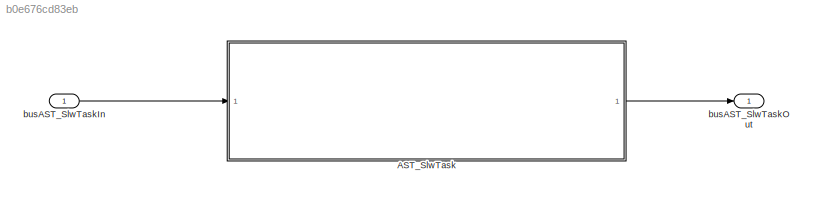
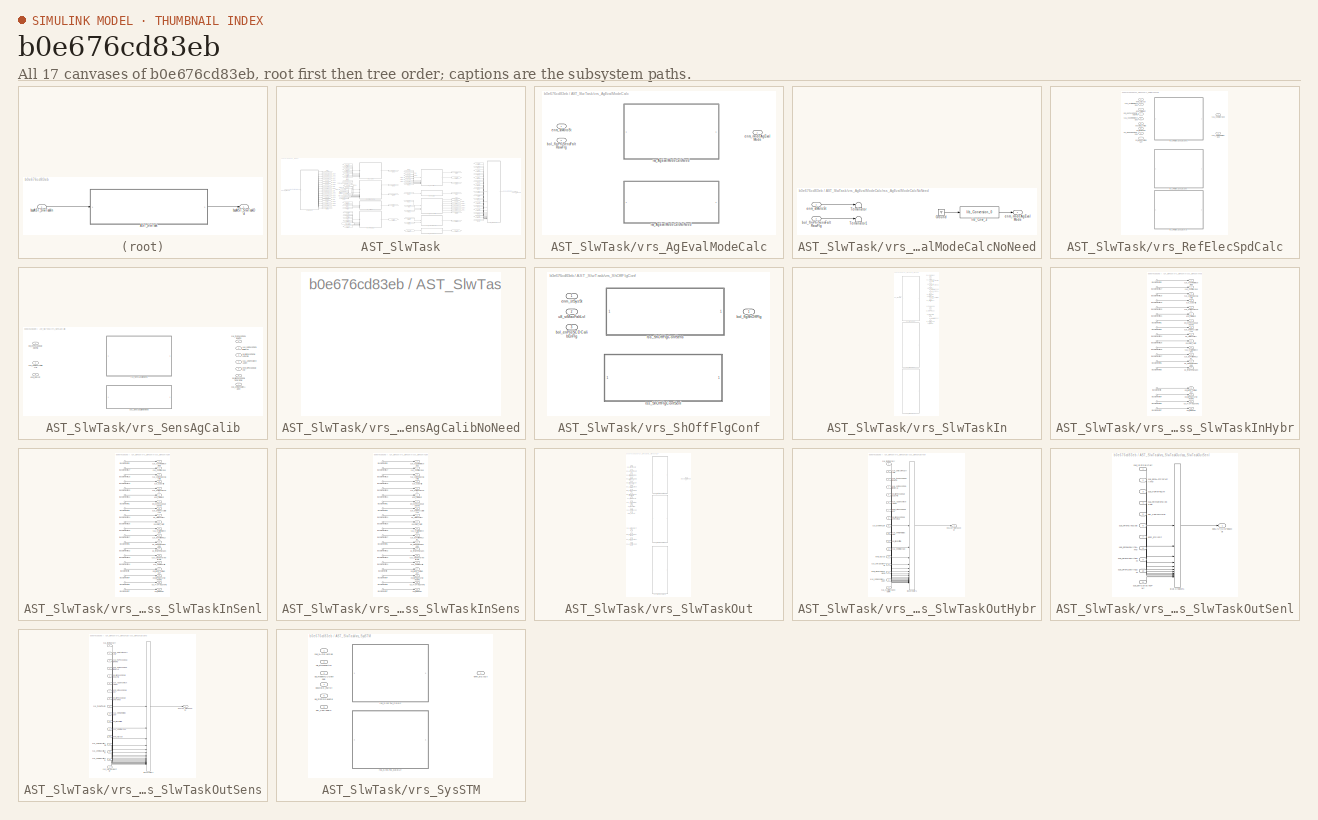
[diagram: thumbnail index - all 17 canvases of the model, root first then tree order]
MODEL slx_b0e676cd83eb
KIND model
CONFIG AbsTol = auto
CONFIG EnableMultiTasking = on
CONFIG FixedStep = 0.0005
CONFIG MaxStep = auto
CONFIG MinStep = auto
CONFIG RelTol = 1e-3
CONFIG SampleTimeConstraint = Unconstrained
CONFIG SolverName = FixedStepAuto
CONFIG StartTime = 0.0
CONFIG StopTime = 5
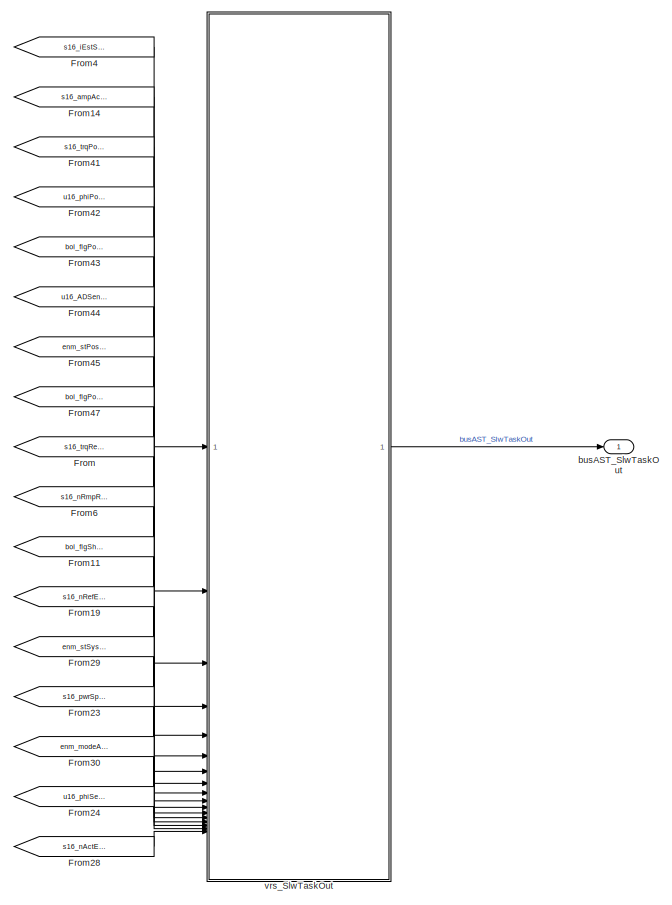
[diagram: AST_SlwTask - part 1/4, right side, full height]
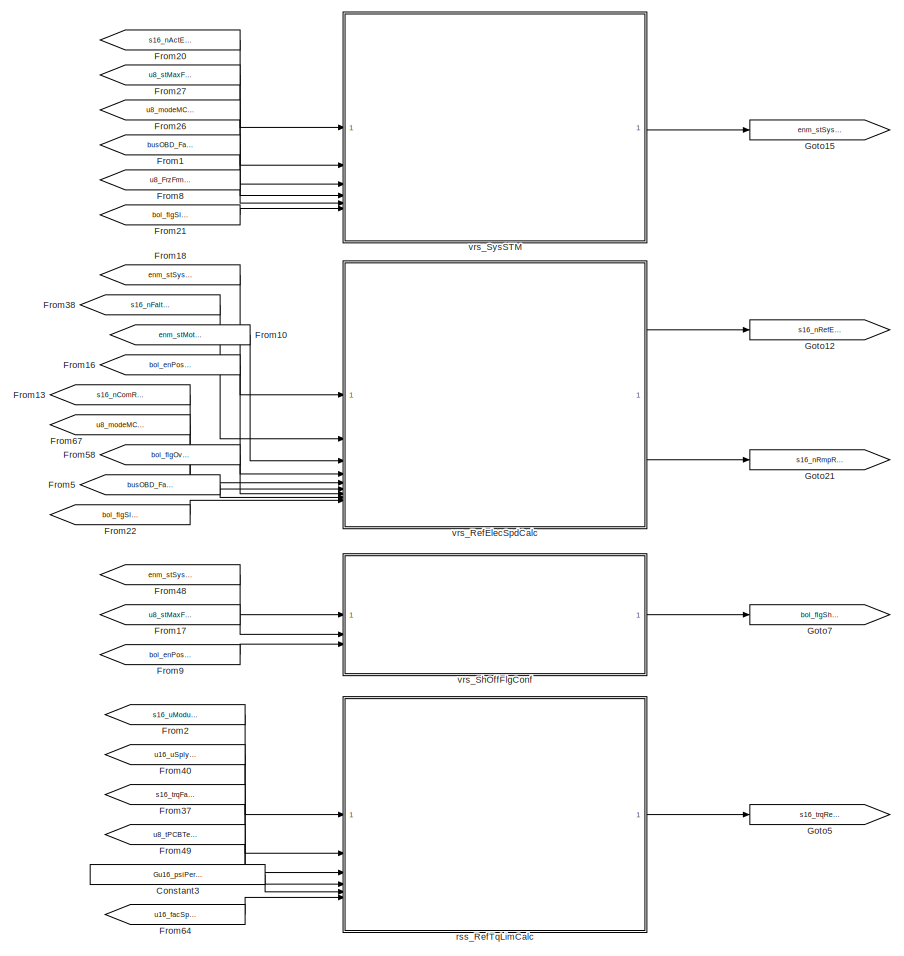
[diagram: AST_SlwTask - part 2/4, center side, full height]
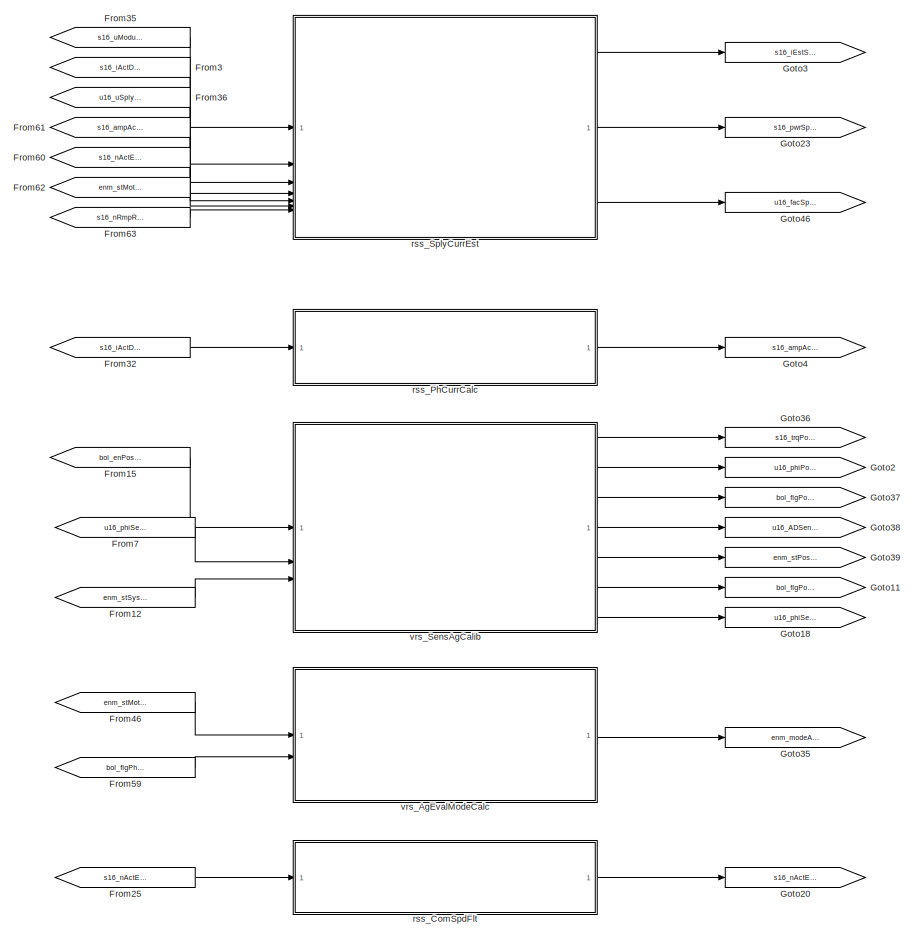
[diagram: AST_SlwTask - part 3/4, center side, full height]
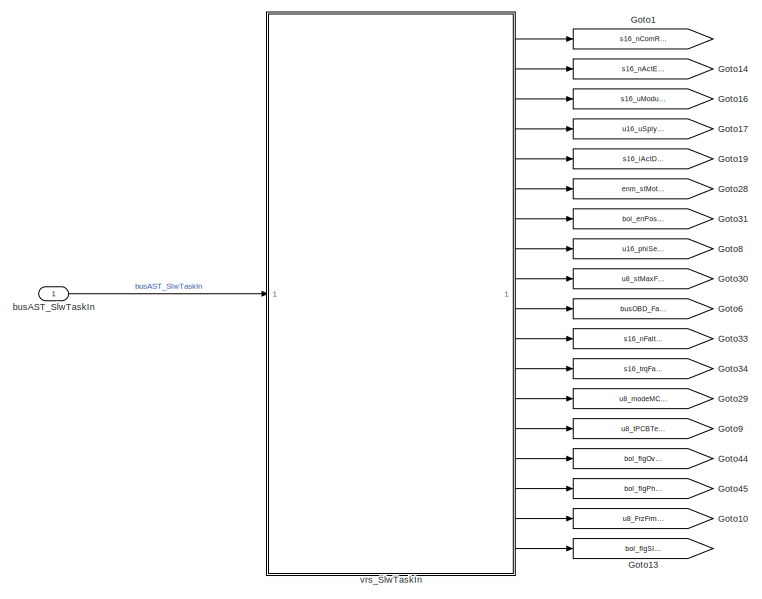
[diagram: AST_SlwTask - part 4/4, middle left region]
BLOCK [SubSystem] AST_SlwTask
  RTWFcnName = AST_SlwTask
  RTWFcnNameOpts = User specified
  RTWSystemCode = Nonreusable function
  TreatAsAtomicUnit = on
BLOCK [Constant] AST_SlwTask/Constant3
  Value = Gu16_psiPermMagFlx_C
BLOCK [From] AST_SlwTask/From
  GotoTag = s16_trqRefTqLim
BLOCK [From] AST_SlwTask/From1
  GotoTag = busOBD_FaltSt
BLOCK [From] AST_SlwTask/From10
  GotoTag = enm_stMotoSt
BLOCK [From] AST_SlwTask/From11
  GotoTag = bol_flgShOffFlg
BLOCK [From] AST_SlwTask/From12
  GotoTag = enm_stSysSt
BLOCK [From] AST_SlwTask/From13
  GotoTag = s16_nComRefMechSpd
BLOCK [From] AST_SlwTask/From14
  GotoTag = s16_ampActPhCurrAmp
BLOCK [From] AST_SlwTask/From15
  GotoTag = bol_enPosSCDCalibEnFlg
BLOCK [From] AST_SlwTask/From16
  GotoTag = bol_enPosSCDCalibEnFlg
BLOCK [From] AST_SlwTask/From17
  GotoTag = u8_stMaxFaltLvl
BLOCK [From] AST_SlwTask/From18
  GotoTag = enm_stSysSt
BLOCK [From] AST_SlwTask/From19
  GotoTag = s16_nRefElecSpd
BLOCK [From] AST_SlwTask/From2
  GotoTag = s16_uModulDaxQaxVltg
BLOCK [From] AST_SlwTask/From20
  GotoTag = s16_nActElecSpd
BLOCK [From] AST_SlwTask/From21
  GotoTag = bol_flgSlepEn
BLOCK [From] AST_SlwTask/From22
  GotoTag = bol_flgSlepEn
BLOCK [From] AST_SlwTask/From23
  GotoTag = s16_pwrSplyElecPwr
BLOCK [From] AST_SlwTask/From24
  GotoTag = u16_phiSensElecAgDvt
BLOCK [From] AST_SlwTask/From25
  GotoTag = s16_nActElecSpd
BLOCK [From] AST_SlwTask/From26
  GotoTag = u8_modeMCUOpMode
BLOCK [From] AST_SlwTask/From27
  GotoTag = u8_stMaxFaltLvl
BLOCK [From] AST_SlwTask/From28
  GotoTag = s16_nActElecSpdComFlt
BLOCK [From] AST_SlwTask/From29
  GotoTag = enm_stSysSt
BLOCK [From] AST_SlwTask/From3
  GotoTag = s16_iActDaxQaxCurr
BLOCK [From] AST_SlwTask/From30
  GotoTag = enm_modeAgEvalMode
BLOCK [From] AST_SlwTask/From32
  GotoTag = s16_iActDaxQaxCurr
BLOCK [From] AST_SlwTask/From35
  GotoTag = s16_uModulDaxQaxVltg
BLOCK [From] AST_SlwTask/From36
  GotoTag = u16_uSplyVltg
BLOCK [From] AST_SlwTask/From37
  GotoTag = s16_trqFaltRefTqLim
BLOCK [From] AST_SlwTask/From38
  GotoTag = s16_nFaltRefMechSpd
BLOCK [From] AST_SlwTask/From4
  GotoTag = s16_iEstSplyCurr
BLOCK [From] AST_SlwTask/From40
  GotoTag = u16_uSplyVltg
BLOCK [From] AST_SlwTask/From41
  GotoTag = s16_trqPosSCDCalibRefTq
BLOCK [From] AST_SlwTask/From42
  GotoTag = u16_phiPosSCDCalibElecAg
BLOCK [From] AST_SlwTask/From43
  GotoTag = bol_flgPosSCDCalibSucFlg
BLOCK [From] AST_SlwTask/From44
  GotoTag = u16_ADSensMechAgDvt
BLOCK [From] AST_SlwTask/From45
  GotoTag = enm_stPosSCDCalibSt
BLOCK [From] AST_SlwTask/From46
  GotoTag = enm_stMotoSt
BLOCK [From] AST_SlwTask/From47
  GotoTag = bol_flgPosSCDCalibPermFail
BLOCK [From] AST_SlwTask/From48
  GotoTag = enm_stSysSt
BLOCK [From] AST_SlwTask/From49
  GotoTag = u8_tPCBTempSubs
BLOCK [From] AST_SlwTask/From5
  GotoTag = busOBD_FaltSt
BLOCK [From] AST_SlwTask/From58
  GotoTag = bol_flgOvrTstCtlUDS2F
BLOCK [From] AST_SlwTask/From59
  GotoTag = bol_flgPhiSensFaltRawFlg
BLOCK [From] AST_SlwTask/From6
  GotoTag = s16_nRmpRefElecSpd
BLOCK [From] AST_SlwTask/From60
  GotoTag = s16_nActElecSpd
BLOCK [From] AST_SlwTask/From61
  GotoTag = s16_ampActPhCurrAmp
BLOCK [From] AST_SlwTask/From62
  GotoTag = enm_stMotoSt
BLOCK [From] AST_SlwTask/From63
  GotoTag = s16_nRmpRefElecSpd
BLOCK [From] AST_SlwTask/From64
  GotoTag = u16_facSplyCurrComp
BLOCK [From] AST_SlwTask/From67
  GotoTag = u8_modeMCUOpMode
BLOCK [From] AST_SlwTask/From7
  GotoTag = u16_phiSensActElecAg
BLOCK [From] AST_SlwTask/From8
  GotoTag = u8_FrzFrmSaveFlg
BLOCK [From] AST_SlwTask/From9
  GotoTag = bol_enPosSCDCalibEnFlg
BLOCK [Goto] AST_SlwTask/Goto1
  GotoTag = s16_nComRefMechSpd
BLOCK [Goto] AST_SlwTask/Goto10
  GotoTag = u8_FrzFrmSaveFlg
BLOCK [Goto] AST_SlwTask/Goto11
  GotoTag = bol_flgPosSCDCalibPermFail
BLOCK [Goto] AST_SlwTask/Goto12
  GotoTag = s16_nRefElecSpd
BLOCK [Goto] AST_SlwTask/Goto13
  GotoTag = bol_flgSlepEn
BLOCK [Goto] AST_SlwTask/Goto14
  GotoTag = s16_nActElecSpd
BLOCK [Goto] AST_SlwTask/Goto15
  GotoTag = enm_stSysSt
BLOCK [Goto] AST_SlwTask/Goto16
  GotoTag = s16_uModulDaxQaxVltg
BLOCK [Goto] AST_SlwTask/Goto17
  GotoTag = u16_uSplyVltg
BLOCK [Goto] AST_SlwTask/Goto18
  GotoTag = u16_phiSensElecAgDvt
BLOCK [Goto] AST_SlwTask/Goto19
  GotoTag = s16_iActDaxQaxCurr
BLOCK [Goto] AST_SlwTask/Goto2
  GotoTag = u16_phiPosSCDCalibElecAg
BLOCK [Goto] AST_SlwTask/Goto20
  GotoTag = s16_nActElecSpdComFlt
BLOCK [Goto] AST_SlwTask/Goto21
  GotoTag = s16_nRmpRefElecSpd
BLOCK [Goto] AST_SlwTask/Goto23
  GotoTag = s16_pwrSplyElecPwr
BLOCK [Goto] AST_SlwTask/Goto28
  GotoTag = enm_stMotoSt
BLOCK [Goto] AST_SlwTask/Goto29
  GotoTag = u8_modeMCUOpMode
BLOCK [Goto] AST_SlwTask/Goto3
  GotoTag = s16_iEstSplyCurr
BLOCK [Goto] AST_SlwTask/Goto30
  GotoTag = u8_stMaxFaltLvl
BLOCK [Goto] AST_SlwTask/Goto31
  GotoTag = bol_enPosSCDCalibEnFlg
BLOCK [Goto] AST_SlwTask/Goto33
  GotoTag = s16_nFaltRefMechSpd
BLOCK [Goto] AST_SlwTask/Goto34
  GotoTag = s16_trqFaltRefTqLim
BLOCK [Goto] AST_SlwTask/Goto35
  GotoTag = enm_modeAgEvalMode
BLOCK [Goto] AST_SlwTask/Goto36
  GotoTag = s16_trqPosSCDCalibRefTq
BLOCK [Goto] AST_SlwTask/Goto37
  GotoTag = bol_flgPosSCDCalibSucFlg
BLOCK [Goto] AST_SlwTask/Goto38
  GotoTag = u16_ADSensMechAgDvt
BLOCK [Goto] AST_SlwTask/Goto39
  GotoTag = enm_stPosSCDCalibSt
BLOCK [Goto] AST_SlwTask/Goto4
  GotoTag = s16_ampActPhCurrAmp
BLOCK [Goto] AST_SlwTask/Goto44
  GotoTag = bol_flgOvrTstCtlUDS2F
BLOCK [Goto] AST_SlwTask/Goto45
  GotoTag = bol_flgPhiSensFaltRawFlg
BLOCK [Goto] AST_SlwTask/Goto46
  GotoTag = u16_facSplyCurrComp
BLOCK [Goto] AST_SlwTask/Goto5
  GotoTag = s16_trqRefTqLim
BLOCK [Goto] AST_SlwTask/Goto6
  GotoTag = busOBD_FaltSt
BLOCK [Goto] AST_SlwTask/Goto7
  GotoTag = bol_flgShOffFlg
BLOCK [Goto] AST_SlwTask/Goto8
  GotoTag = u16_phiSensActElecAg
BLOCK [Goto] AST_SlwTask/Goto9
  GotoTag = u8_tPCBTempSubs
BLOCK [Inport] AST_SlwTask/busAST_SlwTaskIn
  SamplingMode = Sample based
  SignalType = real
BLOCK [Outport] AST_SlwTask/busAST_SlwTaskOut
  SamplingMode = Sample based
  SignalType = real
BLOCK [SubSystem] AST_SlwTask/rss_ComSpdFlt
  ReferencedSubsystem = rss_ComSpdFlt
BLOCK [SubSystem] AST_SlwTask/rss_PhCurrCalc
  ReferencedSubsystem = rss_PhCurrCalc
BLOCK [SubSystem] AST_SlwTask/rss_RefTqLimCalc
  ReferencedSubsystem = rss_RefTqLimCalc
BLOCK [SubSystem] AST_SlwTask/rss_SplyCurrEst
  ReferencedSubsystem = rss_SplyCurrEst
BLOCK [SubSystem] AST_SlwTask/vrs_AgEvalModeCalc
  LabelModeActiveChoice = cstHybrCtrlLbl
  Variant = on
  VariantControl = Choice
  VariantControlMode = label
BLOCK [Inport] AST_SlwTask/vrs_AgEvalModeCalc/bol_flgPhiSensFaltRawFlg
  Port = 2
BLOCK [Outport] AST_SlwTask/vrs_AgEvalModeCalc/enm_modeAgEvalMode
BLOCK [Inport] AST_SlwTask/vrs_AgEvalModeCalc/enm_stMotoSt
BLOCK [SubSystem] AST_SlwTask/vrs_AgEvalModeCalc/rss_AgEvalModeCalcNeed
  ReferencedSubsystem = rss_AgEvalModeCalcNeed
  VariantControl = cstHybrCtrlLbl
BLOCK [SubSystem] AST_SlwTask/vrs_AgEvalModeCalc/rss_AgEvalModeCalcNoNeed
  VariantControl = cstSensCtrlLbl
BLOCK [Ground] AST_SlwTask/vrs_AgEvalModeCalc/rss_AgEvalModeCalcNoNeed/Ground
BLOCK [Terminator] AST_SlwTask/vrs_AgEvalModeCalc/rss_AgEvalModeCalcNoNeed/Terminator
BLOCK [Terminator] AST_SlwTask/vrs_AgEvalModeCalc/rss_AgEvalModeCalcNoNeed/Terminator1
BLOCK [Inport] AST_SlwTask/vrs_AgEvalModeCalc/rss_AgEvalModeCalcNoNeed/bol_flgPhiSensFaltRawFlg
  OutDataTypeStr = boolean
  Port = 2
BLOCK [Outport] AST_SlwTask/vrs_AgEvalModeCalc/rss_AgEvalModeCalcNoNeed/enm_modeAgEvalMode
BLOCK [Inport] AST_SlwTask/vrs_AgEvalModeCalc/rss_AgEvalModeCalcNoNeed/enm_stMotoSt
  OutDataTypeStr = Enum: ENM_MOTO_STATUS
BLOCK [Reference] AST_SlwTask/vrs_AgEvalModeCalc/rss_AgEvalModeCalcNoNeed/lib_Cnvr_3  REF=lib_conversion/lib_Conversion_0  (lib defined in slx_7f5c0202220d)
  SourceBlock = lib_conversion/lib_Conversion_0
BLOCK [SubSystem] AST_SlwTask/vrs_RefElecSpdCalc
  LabelModeActiveChoice = cstHybrCtrlLbl
  Variant = on
  VariantControl = Choice
  VariantControlMode = label
BLOCK [Inport] AST_SlwTask/vrs_RefElecSpdCalc/bol_enPosSCDCalibEnFlg
  Port = 4
BLOCK [Inport] AST_SlwTask/vrs_RefElecSpdCalc/bol_flgOvrTstCtlUDS2F
  OutDataTypeStr = boolean
  Port = 7
BLOCK [Inport] AST_SlwTask/vrs_RefElecSpdCalc/bol_flgSlepEn
  Port = 9
BLOCK [Inport] AST_SlwTask/vrs_RefElecSpdCalc/busOBD_FaltSt
  OutDataTypeStr = Bus: BUS_OBD_FALT_STS
  Port = 8
BLOCK [Inport] AST_SlwTask/vrs_RefElecSpdCalc/enm_stMotoSt
  Port = 3
BLOCK [Inport] AST_SlwTask/vrs_RefElecSpdCalc/enm_stSysSt
BLOCK [SubSystem] AST_SlwTask/vrs_RefElecSpdCalc/rss_RefElecSpdCalcHybr
  ReferencedSubsystem = rss_RefElecSpdCalcHybr
  VariantControl = cstHybrCtrlLbl
BLOCK [SubSystem] AST_SlwTask/vrs_RefElecSpdCalc/rss_RefElecSpdCalcSenl
  ReferencedSubsystem = rss_RefElecSpdCalcSenl
  VariantControl = cstSenlCtrlLbl
BLOCK [SubSystem] AST_SlwTask/vrs_RefElecSpdCalc/rss_RefElecSpdCalcSens
  ReferencedSubsystem = rss_RefElecSpdCalcSens
  VariantControl = cstSensCtrlLbl
BLOCK [Inport] AST_SlwTask/vrs_RefElecSpdCalc/s16_nComRefMechSpd
  Port = 5
BLOCK [Inport] AST_SlwTask/vrs_RefElecSpdCalc/s16_nFaltRefMechSpd
  Port = 2
BLOCK [Outport] AST_SlwTask/vrs_RefElecSpdCalc/s16_nRefElecSpd
BLOCK [Outport] AST_SlwTask/vrs_RefElecSpdCalc/s16_nRmpRefElecSpd
  Port = 2
BLOCK [Inport] AST_SlwTask/vrs_RefElecSpdCalc/u8_modeMCUOpMode
  Port = 6
BLOCK [SubSystem] AST_SlwTask/vrs_SensAgCalib
  LabelModeActiveChoice = cstSensCtrlLbl
  Variant = on
  VariantControl = Choice
  VariantControlMode = label
BLOCK [Inport] AST_SlwTask/vrs_SensAgCalib/bol_enPosSCDCalibEnFlg
BLOCK [Outport] AST_SlwTask/vrs_SensAgCalib/bol_flgPosSCDCalibPermFail
  Port = 6
BLOCK [Outport] AST_SlwTask/vrs_SensAgCalib/bol_flgPosSCDCalibSucFlg
  Port = 3
BLOCK [Outport] AST_SlwTask/vrs_SensAgCalib/enm_stPosSCDCalibSt
  Port = 5
BLOCK [Inport] AST_SlwTask/vrs_SensAgCalib/enm_stSysSt
  Port = 3
BLOCK [SubSystem] AST_SlwTask/vrs_SensAgCalib/rss_SensAgCalibNeed
  ReferencedSubsystem = rss_SensAgCalibNeed
  VariantControl = cstSensCtrlLbl
BLOCK [Outport] AST_SlwTask/vrs_SensAgCalib/s16_trqPosSCDCalibRefTq
BLOCK [SubSystem] AST_SlwTask/vrs_SensAgCalib/sss_SensAgCalibNoNeed
  VariantControl = cstSenlCtrlLbl
BLOCK [Outport] AST_SlwTask/vrs_SensAgCalib/u16_ADSensMechAgDvt
  Port = 4
BLOCK [Outport] AST_SlwTask/vrs_SensAgCalib/u16_phiPosSCDCalibElecAg
  Port = 2
BLOCK [Inport] AST_SlwTask/vrs_SensAgCalib/u16_phiSensActElecAg
  Port = 2
BLOCK [Outport] AST_SlwTask/vrs_SensAgCalib/u16_phiSensElecAgDvt
  Port = 7
BLOCK [SubSystem] AST_SlwTask/vrs_ShOffFlgConf
  LabelModeActiveChoice = cstSensCtrlLbl
  Variant = on
  VariantControl = Choice
  VariantControlMode = label
BLOCK [Inport] AST_SlwTask/vrs_ShOffFlgConf/bol_enPosSCDCalibEnFlg
  Port = 3
BLOCK [Outport] AST_SlwTask/vrs_ShOffFlgConf/bol_flgShOffFlg
BLOCK [Inport] AST_SlwTask/vrs_ShOffFlgConf/enm_stSysSt
BLOCK [SubSystem] AST_SlwTask/vrs_ShOffFlgConf/rss_ShOffFlgConfSenl
  ReferencedSubsystem = rss_ShOffFlgConfSenl
  VariantControl = cstSenlCtrlLbl
BLOCK [SubSystem] AST_SlwTask/vrs_ShOffFlgConf/rss_ShOffFlgConfSens
  ReferencedSubsystem = rss_ShOffFlgConfSens
  VariantControl = cstSensCtrlLbl
BLOCK [Inport] AST_SlwTask/vrs_ShOffFlgConf/u8_stMaxFaltLvl
  Port = 2
BLOCK [SubSystem] AST_SlwTask/vrs_SlwTaskIn
  LabelModeActiveChoice = cstHybrCtrlLbl
  Variant = on
  VariantControl = cstSenlCtrlLbl
  VariantControlMode = label
BLOCK [Outport] AST_SlwTask/vrs_SlwTaskIn/bol_enPosSCDCalibEnFlg
  Port = 7
BLOCK [Outport] AST_SlwTask/vrs_SlwTaskIn/bol_flgOvrTstCtlUDS2F
  Port = 15
BLOCK [Outport] AST_SlwTask/vrs_SlwTaskIn/bol_flgPhiSensFaltRawFlg
  Port = 16
BLOCK [Outport] AST_SlwTask/vrs_SlwTaskIn/bol_flgSlepEn
  Port = 18
BLOCK [Inport] AST_SlwTask/vrs_SlwTaskIn/busAST_SlwTaskIn
BLOCK [Outport] AST_SlwTask/vrs_SlwTaskIn/busOBD_FaltSt
  Port = 10
BLOCK [Outport] AST_SlwTask/vrs_SlwTaskIn/enm_stMotoSt
  Port = 6
BLOCK [Outport] AST_SlwTask/vrs_SlwTaskIn/s16_iActDaxQaxCurr
  Port = 5
BLOCK [Outport] AST_SlwTask/vrs_SlwTaskIn/s16_nActElecSpd
  Port = 2
BLOCK [Outport] AST_SlwTask/vrs_SlwTaskIn/s16_nComRefMechSpd
BLOCK [Outport] AST_SlwTask/vrs_SlwTaskIn/s16_nFaltRefMechSpd
  Port = 11
BLOCK [Outport] AST_SlwTask/vrs_SlwTaskIn/s16_trqFaltRefTqLim
  Port = 12
BLOCK [Outport] AST_SlwTask/vrs_SlwTaskIn/s16_uModulDaxQaxVltg
  Port = 3
BLOCK [SubSystem] AST_SlwTask/vrs_SlwTaskIn/sss_SlwTaskInHybr
  VariantControl = cstHybrCtrlLbl
BLOCK [Inport] AST_SlwTask/vrs_SlwTaskIn/sss_SlwTaskInHybr/BusElementIn
BLOCK [Inport] AST_SlwTask/vrs_SlwTaskIn/sss_SlwTaskInHybr/BusElementIn1
BLOCK [Inport] AST_SlwTask/vrs_SlwTaskIn/sss_SlwTaskInHybr/BusElementIn17
BLOCK [Inport] AST_SlwTask/vrs_SlwTaskIn/sss_SlwTaskInHybr/BusElementIn18
BLOCK [Inport] AST_SlwTask/vrs_SlwTaskIn/sss_SlwTaskInHybr/BusElementIn19
BLOCK [Inport] AST_SlwTask/vrs_SlwTaskIn/sss_SlwTaskInHybr/BusElementIn2
BLOCK [Inport] AST_SlwTask/vrs_SlwTaskIn/sss_SlwTaskInHybr/BusElementIn20
BLOCK [Inport] AST_SlwTask/vrs_SlwTaskIn/sss_SlwTaskInHybr/BusElementIn21
BLOCK [Inport] AST_SlwTask/vrs_SlwTaskIn/sss_SlwTaskInHybr/BusElementIn24
BLOCK [Inport] AST_SlwTask/vrs_SlwTaskIn/sss_SlwTaskInHybr/BusElementIn25
BLOCK [Inport] AST_SlwTask/vrs_SlwTaskIn/sss_SlwTaskInHybr/BusElementIn26
BLOCK [Inport] AST_SlwTask/vrs_SlwTaskIn/sss_SlwTaskInHybr/BusElementIn27
BLOCK [Inport] AST_SlwTask/vrs_SlwTaskIn/sss_SlwTaskInHybr/BusElementIn3
BLOCK [Inport] AST_SlwTask/vrs_SlwTaskIn/sss_SlwTaskInHybr/BusElementIn4
BLOCK [Inport] AST_SlwTask/vrs_SlwTaskIn/sss_SlwTaskInHybr/BusElementIn5
BLOCK [Inport] AST_SlwTask/vrs_SlwTaskIn/sss_SlwTaskInHybr/BusElementIn6
BLOCK [Inport] AST_SlwTask/vrs_SlwTaskIn/sss_SlwTaskInHybr/BusElementIn7
BLOCK [Inport] AST_SlwTask/vrs_SlwTaskIn/sss_SlwTaskInHybr/BusElementIn8
BLOCK [Outport] AST_SlwTask/vrs_SlwTaskIn/sss_SlwTaskInHybr/bol_enPosSCDCalibEnFlg
  Port = 7
BLOCK [Outport] AST_SlwTask/vrs_SlwTaskIn/sss_SlwTaskInHybr/bol_flgOvrTstCtlUDS2F
  Port = 15
BLOCK [Outport] AST_SlwTask/vrs_SlwTaskIn/sss_SlwTaskInHybr/bol_flgPhiSensFaltRawFlg
  Port = 16
BLOCK [Outport] AST_SlwTask/vrs_SlwTaskIn/sss_SlwTaskInHybr/bol_flgSlepEn
  Port = 18
BLOCK [Outport] AST_SlwTask/vrs_SlwTaskIn/sss_SlwTaskInHybr/busOBD_FaltSt
  Port = 10
BLOCK [Outport] AST_SlwTask/vrs_SlwTaskIn/sss_SlwTaskInHybr/enm_stMotoSt
  Port = 6
BLOCK [Outport] AST_SlwTask/vrs_SlwTaskIn/sss_SlwTaskInHybr/s16_iActDaxQaxCurr
  Port = 5
BLOCK [Outport] AST_SlwTask/vrs_SlwTaskIn/sss_SlwTaskInHybr/s16_nActElecSpd
  Port = 2
BLOCK [Outport] AST_SlwTask/vrs_SlwTaskIn/sss_SlwTaskInHybr/s16_nComRefMechSpd
BLOCK [Outport] AST_SlwTask/vrs_SlwTaskIn/sss_SlwTaskInHybr/s16_nFaltRefMechSpd
  Port = 11
BLOCK [Outport] AST_SlwTask/vrs_SlwTaskIn/sss_SlwTaskInHybr/s16_trqFaltRefTqLim
  Port = 12
BLOCK [Outport] AST_SlwTask/vrs_SlwTaskIn/sss_SlwTaskInHybr/s16_uModulDaxQaxVltg
  Port = 3
BLOCK [Outport] AST_SlwTask/vrs_SlwTaskIn/sss_SlwTaskInHybr/u16_phiSensActElecAg
  Port = 8
BLOCK [Outport] AST_SlwTask/vrs_SlwTaskIn/sss_SlwTaskInHybr/u16_uSplyVltg
  Port = 4
BLOCK [Outport] AST_SlwTask/vrs_SlwTaskIn/sss_SlwTaskInHybr/u8_FrzFrmSaveFlg
  Port = 17
BLOCK [Outport] AST_SlwTask/vrs_SlwTaskIn/sss_SlwTaskInHybr/u8_modeMCUOpMode
  Port = 13
BLOCK [Outport] AST_SlwTask/vrs_SlwTaskIn/sss_SlwTaskInHybr/u8_stMaxFaltLvl
  Port = 9
BLOCK [Outport] AST_SlwTask/vrs_SlwTaskIn/sss_SlwTaskInHybr/u8_tPCBTempSubs
  Port = 14
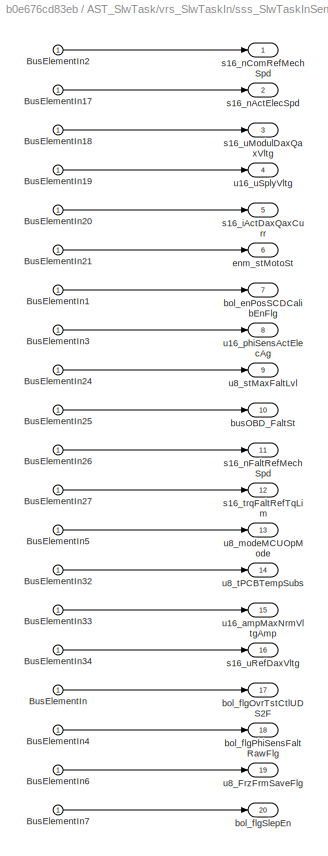
BLOCK [SubSystem] AST_SlwTask/vrs_SlwTaskIn/sss_SlwTaskInSenl
  VariantControl = cstSenlCtrlLbl
BLOCK [Inport] AST_SlwTask/vrs_SlwTaskIn/sss_SlwTaskInSenl/BusElementIn
BLOCK [Inport] AST_SlwTask/vrs_SlwTaskIn/sss_SlwTaskInSenl/BusElementIn1
BLOCK [Inport] AST_SlwTask/vrs_SlwTaskIn/sss_SlwTaskInSenl/BusElementIn17
BLOCK [Inport] AST_SlwTask/vrs_SlwTaskIn/sss_SlwTaskInSenl/BusElementIn18
BLOCK [Inport] AST_SlwTask/vrs_SlwTaskIn/sss_SlwTaskInSenl/BusElementIn19
BLOCK [Inport] AST_SlwTask/vrs_SlwTaskIn/sss_SlwTaskInSenl/BusElementIn2
BLOCK [Inport] AST_SlwTask/vrs_SlwTaskIn/sss_SlwTaskInSenl/BusElementIn20
BLOCK [Inport] AST_SlwTask/vrs_SlwTaskIn/sss_SlwTaskInSenl/BusElementIn21
BLOCK [Inport] AST_SlwTask/vrs_SlwTaskIn/sss_SlwTaskInSenl/BusElementIn24
BLOCK [Inport] AST_SlwTask/vrs_SlwTaskIn/sss_SlwTaskInSenl/BusElementIn25
BLOCK [Inport] AST_SlwTask/vrs_SlwTaskIn/sss_SlwTaskInSenl/BusElementIn26
BLOCK [Inport] AST_SlwTask/vrs_SlwTaskIn/sss_SlwTaskInSenl/BusElementIn27
BLOCK [Inport] AST_SlwTask/vrs_SlwTaskIn/sss_SlwTaskInSenl/BusElementIn3
BLOCK [Inport] AST_SlwTask/vrs_SlwTaskIn/sss_SlwTaskInSenl/BusElementIn32
BLOCK [Inport] AST_SlwTask/vrs_SlwTaskIn/sss_SlwTaskInSenl/BusElementIn33
BLOCK [Inport] AST_SlwTask/vrs_SlwTaskIn/sss_SlwTaskInSenl/BusElementIn34
BLOCK [Inport] AST_SlwTask/vrs_SlwTaskIn/sss_SlwTaskInSenl/BusElementIn4
BLOCK [Inport] AST_SlwTask/vrs_SlwTaskIn/sss_SlwTaskInSenl/BusElementIn5
BLOCK [Inport] AST_SlwTask/vrs_SlwTaskIn/sss_SlwTaskInSenl/BusElementIn6
BLOCK [Inport] AST_SlwTask/vrs_SlwTaskIn/sss_SlwTaskInSenl/BusElementIn7
BLOCK [Outport] AST_SlwTask/vrs_SlwTaskIn/sss_SlwTaskInSenl/bol_enPosSCDCalibEnFlg
  Port = 7
BLOCK [Outport] AST_SlwTask/vrs_SlwTaskIn/sss_SlwTaskInSenl/bol_flgOvrTstCtlUDS2F
  Port = 17
BLOCK [Outport] AST_SlwTask/vrs_SlwTaskIn/sss_SlwTaskInSenl/bol_flgPhiSensFaltRawFlg
  Port = 18
BLOCK [Outport] AST_SlwTask/vrs_SlwTaskIn/sss_SlwTaskInSenl/bol_flgSlepEn
  Port = 20
BLOCK [Outport] AST_SlwTask/vrs_SlwTaskIn/sss_SlwTaskInSenl/busOBD_FaltSt
  Port = 10
BLOCK [Outport] AST_SlwTask/vrs_SlwTaskIn/sss_SlwTaskInSenl/enm_stMotoSt
  Port = 6
BLOCK [Outport] AST_SlwTask/vrs_SlwTaskIn/sss_SlwTaskInSenl/s16_iActDaxQaxCurr
  Port = 5
BLOCK [Outport] AST_SlwTask/vrs_SlwTaskIn/sss_SlwTaskInSenl/s16_nActElecSpd
  Port = 2
BLOCK [Outport] AST_SlwTask/vrs_SlwTaskIn/sss_SlwTaskInSenl/s16_nComRefMechSpd
BLOCK [Outport] AST_SlwTask/vrs_SlwTaskIn/sss_SlwTaskInSenl/s16_nFaltRefMechSpd
  Port = 11
BLOCK [Outport] AST_SlwTask/vrs_SlwTaskIn/sss_SlwTaskInSenl/s16_trqFaltRefTqLim
  Port = 12
BLOCK [Outport] AST_SlwTask/vrs_SlwTaskIn/sss_SlwTaskInSenl/s16_uModulDaxQaxVltg
  Port = 3
BLOCK [Outport] AST_SlwTask/vrs_SlwTaskIn/sss_SlwTaskInSenl/s16_uRefDaxVltg
  Port = 16
BLOCK [Outport] AST_SlwTask/vrs_SlwTaskIn/sss_SlwTaskInSenl/u16_ampMaxNrmVltgAmp
  Port = 15
BLOCK [Outport] AST_SlwTask/vrs_SlwTaskIn/sss_SlwTaskInSenl/u16_phiSensActElecAg
  Port = 8
BLOCK [Outport] AST_SlwTask/vrs_SlwTaskIn/sss_SlwTaskInSenl/u16_uSplyVltg
  Port = 4
BLOCK [Outport] AST_SlwTask/vrs_SlwTaskIn/sss_SlwTaskInSenl/u8_FrzFrmSaveFlg
  Port = 19
BLOCK [Outport] AST_SlwTask/vrs_SlwTaskIn/sss_SlwTaskInSenl/u8_modeMCUOpMode
  Port = 13
BLOCK [Outport] AST_SlwTask/vrs_SlwTaskIn/sss_SlwTaskInSenl/u8_stMaxFaltLvl
  Port = 9
BLOCK [Outport] AST_SlwTask/vrs_SlwTaskIn/sss_SlwTaskInSenl/u8_tPCBTempSubs
  Port = 14
BLOCK [SubSystem] AST_SlwTask/vrs_SlwTaskIn/sss_SlwTaskInSens
  VariantControl = cstSensCtrlLbl
BLOCK [Inport] AST_SlwTask/vrs_SlwTaskIn/sss_SlwTaskInSens/BusElementIn
BLOCK [Inport] AST_SlwTask/vrs_SlwTaskIn/sss_SlwTaskInSens/BusElementIn1
BLOCK [Inport] AST_SlwTask/vrs_SlwTaskIn/sss_SlwTaskInSens/BusElementIn17
BLOCK [Inport] AST_SlwTask/vrs_SlwTaskIn/sss_SlwTaskInSens/BusElementIn18
BLOCK [Inport] AST_SlwTask/vrs_SlwTaskIn/sss_SlwTaskInSens/BusElementIn19
BLOCK [Inport] AST_SlwTask/vrs_SlwTaskIn/sss_SlwTaskInSens/BusElementIn2
BLOCK [Inport] AST_SlwTask/vrs_SlwTaskIn/sss_SlwTaskInSens/BusElementIn20
BLOCK [Inport] AST_SlwTask/vrs_SlwTaskIn/sss_SlwTaskInSens/BusElementIn21
BLOCK [Inport] AST_SlwTask/vrs_SlwTaskIn/sss_SlwTaskInSens/BusElementIn24
BLOCK [Inport] AST_SlwTask/vrs_SlwTaskIn/sss_SlwTaskInSens/BusElementIn25
BLOCK [Inport] AST_SlwTask/vrs_SlwTaskIn/sss_SlwTaskInSens/BusElementIn26
BLOCK [Inport] AST_SlwTask/vrs_SlwTaskIn/sss_SlwTaskInSens/BusElementIn27
BLOCK [Inport] AST_SlwTask/vrs_SlwTaskIn/sss_SlwTaskInSens/BusElementIn3
BLOCK [Inport] AST_SlwTask/vrs_SlwTaskIn/sss_SlwTaskInSens/BusElementIn32
BLOCK [Inport] AST_SlwTask/vrs_SlwTaskIn/sss_SlwTaskInSens/BusElementIn33
BLOCK [Inport] AST_SlwTask/vrs_SlwTaskIn/sss_SlwTaskInSens/BusElementIn34
BLOCK [Inport] AST_SlwTask/vrs_SlwTaskIn/sss_SlwTaskInSens/BusElementIn4
BLOCK [Inport] AST_SlwTask/vrs_SlwTaskIn/sss_SlwTaskInSens/BusElementIn5
BLOCK [Inport] AST_SlwTask/vrs_SlwTaskIn/sss_SlwTaskInSens/BusElementIn6
BLOCK [Inport] AST_SlwTask/vrs_SlwTaskIn/sss_SlwTaskInSens/BusElementIn7
BLOCK [Outport] AST_SlwTask/vrs_SlwTaskIn/sss_SlwTaskInSens/bol_enPosSCDCalibEnFlg
  Port = 7
BLOCK [Outport] AST_SlwTask/vrs_SlwTaskIn/sss_SlwTaskInSens/bol_flgOvrTstCtlUDS2F
  Port = 17
BLOCK [Outport] AST_SlwTask/vrs_SlwTaskIn/sss_SlwTaskInSens/bol_flgPhiSensFaltRawFlg
  Port = 18
BLOCK [Outport] AST_SlwTask/vrs_SlwTaskIn/sss_SlwTaskInSens/bol_flgSlepEn
  Port = 20
BLOCK [Outport] AST_SlwTask/vrs_SlwTaskIn/sss_SlwTaskInSens/busOBD_FaltSt
  Port = 10
BLOCK [Outport] AST_SlwTask/vrs_SlwTaskIn/sss_SlwTaskInSens/enm_stMotoSt
  Port = 6
BLOCK [Outport] AST_SlwTask/vrs_SlwTaskIn/sss_SlwTaskInSens/s16_iActDaxQaxCurr
  Port = 5
BLOCK [Outport] AST_SlwTask/vrs_SlwTaskIn/sss_SlwTaskInSens/s16_nActElecSpd
  Port = 2
BLOCK [Outport] AST_SlwTask/vrs_SlwTaskIn/sss_SlwTaskInSens/s16_nComRefMechSpd
BLOCK [Outport] AST_SlwTask/vrs_SlwTaskIn/sss_SlwTaskInSens/s16_nFaltRefMechSpd
  Port = 11
BLOCK [Outport] AST_SlwTask/vrs_SlwTaskIn/sss_SlwTaskInSens/s16_trqFaltRefTqLim
  Port = 12
BLOCK [Outport] AST_SlwTask/vrs_SlwTaskIn/sss_SlwTaskInSens/s16_uModulDaxQaxVltg
  Port = 3
BLOCK [Outport] AST_SlwTask/vrs_SlwTaskIn/sss_SlwTaskInSens/s16_uRefDaxVltg
  Port = 16
BLOCK [Outport] AST_SlwTask/vrs_SlwTaskIn/sss_SlwTaskInSens/u16_ampMaxNrmVltgAmp
  Port = 15
BLOCK [Outport] AST_SlwTask/vrs_SlwTaskIn/sss_SlwTaskInSens/u16_phiSensActElecAg
  Port = 8
BLOCK [Outport] AST_SlwTask/vrs_SlwTaskIn/sss_SlwTaskInSens/u16_uSplyVltg
  Port = 4
BLOCK [Outport] AST_SlwTask/vrs_SlwTaskIn/sss_SlwTaskInSens/u8_FrzFrmSaveFlg
  Port = 19
BLOCK [Outport] AST_SlwTask/vrs_SlwTaskIn/sss_SlwTaskInSens/u8_modeMCUOpMode
  Port = 13
BLOCK [Outport] AST_SlwTask/vrs_SlwTaskIn/sss_SlwTaskInSens/u8_stMaxFaltLvl
  Port = 9
BLOCK [Outport] AST_SlwTask/vrs_SlwTaskIn/sss_SlwTaskInSens/u8_tPCBTempSubs
  Port = 14
BLOCK [Outport] AST_SlwTask/vrs_SlwTaskIn/u16_phiSensActElecAg
  Port = 8
BLOCK [Outport] AST_SlwTask/vrs_SlwTaskIn/u16_uSplyVltg
  Port = 4
BLOCK [Outport] AST_SlwTask/vrs_SlwTaskIn/u8_FrzFrmSaveFlg
  Port = 17
BLOCK [Outport] AST_SlwTask/vrs_SlwTaskIn/u8_modeMCUOpMode
  Port = 13
BLOCK [Outport] AST_SlwTask/vrs_SlwTaskIn/u8_stMaxFaltLvl
  Port = 9
BLOCK [Outport] AST_SlwTask/vrs_SlwTaskIn/u8_tPCBTempSubs
  Port = 14
BLOCK [SubSystem] AST_SlwTask/vrs_SlwTaskOut
  LabelModeActiveChoice = cstHybrCtrlLbl
  Variant = on
  VariantControl = Choice
  VariantControlMode = label
BLOCK [Inport] AST_SlwTask/vrs_SlwTaskOut/bol_flgPosSCDCalibPermFail
  Port = 8
BLOCK [Inport] AST_SlwTask/vrs_SlwTaskOut/bol_flgPosSCDCalibSucFlg
  Port = 5
BLOCK [Inport] AST_SlwTask/vrs_SlwTaskOut/bol_flgShOffFlg
  Port = 11
BLOCK [Outport] AST_SlwTask/vrs_SlwTaskOut/busAST_SlwTaskOut
BLOCK [Inport] AST_SlwTask/vrs_SlwTaskOut/enm_modeAgEvalMode
  Port = 15
BLOCK [Inport] AST_SlwTask/vrs_SlwTaskOut/enm_stPosSCDCalibSt
  Port = 7
BLOCK [Inport] AST_SlwTask/vrs_SlwTaskOut/enm_stSysSt
  Port = 13
BLOCK [Inport] AST_SlwTask/vrs_SlwTaskOut/s16_ampActPhCurrAmp
  Port = 2
BLOCK [Inport] AST_SlwTask/vrs_SlwTaskOut/s16_iEstSplyCurr
BLOCK [Inport] AST_SlwTask/vrs_SlwTaskOut/s16_nActElecSpdComFlt
  Port = 17
BLOCK [Inport] AST_SlwTask/vrs_SlwTaskOut/s16_nRefElecSpd
  Port = 12
BLOCK [Inport] AST_SlwTask/vrs_SlwTaskOut/s16_nRmpRefElecSpd
  Port = 10
BLOCK [Inport] AST_SlwTask/vrs_SlwTaskOut/s16_pwrSplyElecPwr
  Port = 14
BLOCK [Inport] AST_SlwTask/vrs_SlwTaskOut/s16_trqPosSCDCalibRefTq
  Port = 3
BLOCK [Inport] AST_SlwTask/vrs_SlwTaskOut/s16_trqRefTqLim
  Port = 9
BLOCK [SubSystem] AST_SlwTask/vrs_SlwTaskOut/sss_SlwTaskOutHybr
  VariantControl = cstHybrCtrlLbl
BLOCK [BusCreator] AST_SlwTask/vrs_SlwTaskOut/sss_SlwTaskOutHybr/Bus Creator1
  DisplayOption = bar
  InheritFromInputs = off
  Inputs = 17
  NonVirtualBus = on
  OutDataTypeStr = Bus: BUS_AST_SLW_TASK_OUT
BLOCK [Inport] AST_SlwTask/vrs_SlwTaskOut/sss_SlwTaskOutHybr/bol_flgPosSCDCalibPermFail
  Port = 8
BLOCK [Inport] AST_SlwTask/vrs_SlwTaskOut/sss_SlwTaskOutHybr/bol_flgPosSCDCalibSucFlg
  Port = 5
BLOCK [Inport] AST_SlwTask/vrs_SlwTaskOut/sss_SlwTaskOutHybr/bol_flgShOffFlg
  Port = 11
BLOCK [Outport] AST_SlwTask/vrs_SlwTaskOut/sss_SlwTaskOutHybr/busAST_SlwTaskOut
BLOCK [Inport] AST_SlwTask/vrs_SlwTaskOut/sss_SlwTaskOutHybr/enm_modeAgEvalMode
  Port = 15
BLOCK [Inport] AST_SlwTask/vrs_SlwTaskOut/sss_SlwTaskOutHybr/enm_stPosSCDCalibSt
  Port = 7
BLOCK [Inport] AST_SlwTask/vrs_SlwTaskOut/sss_SlwTaskOutHybr/enm_stSysSt
  Port = 13
BLOCK [Inport] AST_SlwTask/vrs_SlwTaskOut/sss_SlwTaskOutHybr/s16_ampActPhCurrAmp
  Port = 2
BLOCK [Inport] AST_SlwTask/vrs_SlwTaskOut/sss_SlwTaskOutHybr/s16_iEstSplyCurr
BLOCK [Inport] AST_SlwTask/vrs_SlwTaskOut/sss_SlwTaskOutHybr/s16_nActElecSpdComFlt
  Port = 17
BLOCK [Inport] AST_SlwTask/vrs_SlwTaskOut/sss_SlwTaskOutHybr/s16_nRefElecSpd
  Port = 12
BLOCK [Inport] AST_SlwTask/vrs_SlwTaskOut/sss_SlwTaskOutHybr/s16_nRmpRefElecSpd
  Port = 10
BLOCK [Inport] AST_SlwTask/vrs_SlwTaskOut/sss_SlwTaskOutHybr/s16_pwrSplyElecPwr
  Port = 14
BLOCK [Inport] AST_SlwTask/vrs_SlwTaskOut/sss_SlwTaskOutHybr/s16_trqPosSCDCalibRefTq
  Port = 3
BLOCK [Inport] AST_SlwTask/vrs_SlwTaskOut/sss_SlwTaskOutHybr/s16_trqRefTqLim
  Port = 9
BLOCK [Inport] AST_SlwTask/vrs_SlwTaskOut/sss_SlwTaskOutHybr/u16_ADSensMechAgDvt
  Port = 6
BLOCK [Inport] AST_SlwTask/vrs_SlwTaskOut/sss_SlwTaskOutHybr/u16_phiPosSCDCalibElecAg
  Port = 4
BLOCK [Inport] AST_SlwTask/vrs_SlwTaskOut/sss_SlwTaskOutHybr/u16_phiSensElecAgDvt
  Port = 16
BLOCK [SubSystem] AST_SlwTask/vrs_SlwTaskOut/sss_SlwTaskOutSenl
  VariantControl = cstSenlCtrlLbl
BLOCK [BusCreator] AST_SlwTask/vrs_SlwTaskOut/sss_SlwTaskOutSenl/Bus Creator1
  DisplayOption = bar
  InheritFromInputs = off
  Inputs = 11
  NonVirtualBus = on
  OutDataTypeStr = Bus: BUS_AST_SLW_TASK_OUT
BLOCK [Inport] AST_SlwTask/vrs_SlwTaskOut/sss_SlwTaskOutSenl/bol_flgShOffFlg
  Port = 5
BLOCK [Outport] AST_SlwTask/vrs_SlwTaskOut/sss_SlwTaskOutSenl/busAST_SlwTaskOut
BLOCK [Inport] AST_SlwTask/vrs_SlwTaskOut/sss_SlwTaskOutSenl/enm_stSysSt
  Port = 7
BLOCK [Inport] AST_SlwTask/vrs_SlwTaskOut/sss_SlwTaskOutSenl/s16_ampActPhCurrAmp
  Port = 2
BLOCK [Inport] AST_SlwTask/vrs_SlwTaskOut/sss_SlwTaskOutSenl/s16_iEstSplyCurr
BLOCK [Inport] AST_SlwTask/vrs_SlwTaskOut/sss_SlwTaskOutSenl/s16_nRefElecSpd
  Port = 6
BLOCK [Inport] AST_SlwTask/vrs_SlwTaskOut/sss_SlwTaskOutSenl/s16_nRmpRefElecSpd
  Port = 4
BLOCK [Inport] AST_SlwTask/vrs_SlwTaskOut/sss_SlwTaskOutSenl/s16_pwrSplyElecPwr
  Port = 11
BLOCK [Inport] AST_SlwTask/vrs_SlwTaskOut/sss_SlwTaskOutSenl/s16_trqRefTqLim
  Port = 3
BLOCK [Inport] AST_SlwTask/vrs_SlwTaskOut/sss_SlwTaskOutSenl/s16_uRefDaxVltgLim
  Port = 9
BLOCK [Inport] AST_SlwTask/vrs_SlwTaskOut/sss_SlwTaskOutSenl/s16_uRefQaxVltgLim
  Port = 10
BLOCK [Inport] AST_SlwTask/vrs_SlwTaskOut/sss_SlwTaskOutSenl/u16_ampMaxVltgAmp
  Port = 8
BLOCK [SubSystem] AST_SlwTask/vrs_SlwTaskOut/sss_SlwTaskOutSens
  VariantControl = cstSensCtrlLbl
BLOCK [BusCreator] AST_SlwTask/vrs_SlwTaskOut/sss_SlwTaskOutSens/Bus Creator1
  DisplayOption = bar
  InheritFromInputs = off
  Inputs = 17
  NonVirtualBus = on
  OutDataTypeStr = Bus: BUS_AST_SLW_TASK_OUT
BLOCK [Inport] AST_SlwTask/vrs_SlwTaskOut/sss_SlwTaskOutSens/bol_flgPosSCDCalibPermFail
  Port = 8
BLOCK [Inport] AST_SlwTask/vrs_SlwTaskOut/sss_SlwTaskOutSens/bol_flgPosSCDCalibSucFlg
  Port = 5
BLOCK [Inport] AST_SlwTask/vrs_SlwTaskOut/sss_SlwTaskOutSens/bol_flgShOffFlg
  Port = 11
BLOCK [Outport] AST_SlwTask/vrs_SlwTaskOut/sss_SlwTaskOutSens/busAST_SlwTaskOut
BLOCK [Inport] AST_SlwTask/vrs_SlwTaskOut/sss_SlwTaskOutSens/enm_stPosSCDCalibSt
  Port = 7
BLOCK [Inport] AST_SlwTask/vrs_SlwTaskOut/sss_SlwTaskOutSens/enm_stSysSt
  Port = 13
BLOCK [Inport] AST_SlwTask/vrs_SlwTaskOut/sss_SlwTaskOutSens/s16_ampActPhCurrAmp
  Port = 2
BLOCK [Inport] AST_SlwTask/vrs_SlwTaskOut/sss_SlwTaskOutSens/s16_iEstSplyCurr
BLOCK [Inport] AST_SlwTask/vrs_SlwTaskOut/sss_SlwTaskOutSens/s16_nRefElecSpd
  Port = 12
BLOCK [Inport] AST_SlwTask/vrs_SlwTaskOut/sss_SlwTaskOutSens/s16_nRmpRefElecSpd
  Port = 10
BLOCK [Inport] AST_SlwTask/vrs_SlwTaskOut/sss_SlwTaskOutSens/s16_pwrSplyElecPwr
  Port = 17
BLOCK [Inport] AST_SlwTask/vrs_SlwTaskOut/sss_SlwTaskOutSens/s16_trqPosSCDCalibRefTq
  Port = 3
BLOCK [Inport] AST_SlwTask/vrs_SlwTaskOut/sss_SlwTaskOutSens/s16_trqRefTqLim
  Port = 9
BLOCK [Inport] AST_SlwTask/vrs_SlwTaskOut/sss_SlwTaskOutSens/s16_uRefDaxVltgLim
  Port = 15
BLOCK [Inport] AST_SlwTask/vrs_SlwTaskOut/sss_SlwTaskOutSens/s16_uRefQaxVltgLim
  Port = 16
BLOCK [Inport] AST_SlwTask/vrs_SlwTaskOut/sss_SlwTaskOutSens/u16_ADSensMechAgDvt
  Port = 6
BLOCK [Inport] AST_SlwTask/vrs_SlwTaskOut/sss_SlwTaskOutSens/u16_ampMaxVltgAmp
  Port = 14
BLOCK [Inport] AST_SlwTask/vrs_SlwTaskOut/sss_SlwTaskOutSens/u16_phiPosSCDCalibElecAg
  Port = 4
BLOCK [Inport] AST_SlwTask/vrs_SlwTaskOut/u16_ADSensMechAgDvt
  Port = 6
BLOCK [Inport] AST_SlwTask/vrs_SlwTaskOut/u16_phiPosSCDCalibElecAg
  Port = 4
BLOCK [Inport] AST_SlwTask/vrs_SlwTaskOut/u16_phiSensElecAgDvt
  Port = 16
BLOCK [SubSystem] AST_SlwTask/vrs_SysSTM
  LabelModeActiveChoice = GEELY_PROJECT
  Variant = on
  VariantControl = Choice
  VariantControlMode = label
BLOCK [Inport] AST_SlwTask/vrs_SysSTM/bol_flgSlepEn
  Port = 6
BLOCK [Inport] AST_SlwTask/vrs_SysSTM/busOBD_FaltSt
  Port = 4
BLOCK [Outport] AST_SlwTask/vrs_SysSTM/enm_stSysSt
BLOCK [SubSystem] AST_SlwTask/vrs_SysSTM/rss_SysSTM_CRRC
  ReferencedSubsystem = rss_SysSTM_CRRC
  VariantControl = CRRC_PROJECT
BLOCK [SubSystem] AST_SlwTask/vrs_SysSTM/rss_SysSTM_GEELY
  ReferencedSubsystem = rss_SysSTM_GEELY
  VariantControl = GEELY_PROJECT
BLOCK [Inport] AST_SlwTask/vrs_SysSTM/s16_nActElecSpd
BLOCK [Inport] AST_SlwTask/vrs_SysSTM/u8_FrzFrmSaveFlg
  Port = 5
BLOCK [Inport] AST_SlwTask/vrs_SysSTM/u8_modeMCUOpMode
  Port = 3
BLOCK [Inport] AST_SlwTask/vrs_SysSTM/u8_stMaxFaltLvl
  Port = 2
BLOCK [Inport] busAST_SlwTaskIn
  BusOutputAsStruct = on
  OutDataTypeStr = Bus: BUS_AST_SLW_TASK_IN
  SampleTime = round(double(Cdbl_tiSlwTaskSmpTi),4)
  SamplingMode = Sample based
  SignalType = real
BLOCK [Outport] busAST_SlwTaskOut
  OutDataTypeStr = Bus: BUS_AST_SLW_TASK_OUT
  SampleTime = round(double(Cdbl_tiSlwTaskSmpTi),4)
  SamplingMode = Sample based
  SignalType = real
LINE AST_SlwTask/Constant3:1 -> AST_SlwTask/rss_RefTqLimCalc:5
LINE AST_SlwTask/From10:1 -> AST_SlwTask/vrs_RefElecSpdCalc:3
LINE AST_SlwTask/From11:1 -> AST_SlwTask/vrs_SlwTaskOut:11
LINE AST_SlwTask/From12:1 -> AST_SlwTask/vrs_SensAgCalib:3
LINE AST_SlwTask/From13:1 -> AST_SlwTask/vrs_RefElecSpdCalc:5
LINE AST_SlwTask/From14:1 -> AST_SlwTask/vrs_SlwTaskOut:2
LINE AST_SlwTask/From15:1 -> AST_SlwTask/vrs_SensAgCalib:1
LINE AST_SlwTask/From16:1 -> AST_SlwTask/vrs_RefElecSpdCalc:4
LINE AST_SlwTask/From17:1 -> AST_SlwTask/vrs_ShOffFlgConf:2
LINE AST_SlwTask/From18:1 -> AST_SlwTask/vrs_RefElecSpdCalc:1
LINE AST_SlwTask/From19:1 -> AST_SlwTask/vrs_SlwTaskOut:12
LINE AST_SlwTask/From1:1 -> AST_SlwTask/vrs_SysSTM:4
LINE AST_SlwTask/From20:1 -> AST_SlwTask/vrs_SysSTM:1
LINE AST_SlwTask/From21:1 -> AST_SlwTask/vrs_SysSTM:6
LINE AST_SlwTask/From22:1 -> AST_SlwTask/vrs_RefElecSpdCalc:9
LINE AST_SlwTask/From23:1 -> AST_SlwTask/vrs_SlwTaskOut:14
LINE AST_SlwTask/From24:1 -> AST_SlwTask/vrs_SlwTaskOut:16
LINE AST_SlwTask/From25:1 -> AST_SlwTask/rss_ComSpdFlt:1
LINE AST_SlwTask/From26:1 -> AST_SlwTask/vrs_SysSTM:3
LINE AST_SlwTask/From27:1 -> AST_SlwTask/vrs_SysSTM:2
LINE AST_SlwTask/From28:1 -> AST_SlwTask/vrs_SlwTaskOut:17
LINE AST_SlwTask/From29:1 -> AST_SlwTask/vrs_SlwTaskOut:13
LINE AST_SlwTask/From2:1 -> AST_SlwTask/rss_RefTqLimCalc:1
LINE AST_SlwTask/From30:1 -> AST_SlwTask/vrs_SlwTaskOut:15
LINE AST_SlwTask/From32:1 -> AST_SlwTask/rss_PhCurrCalc:1
LINE AST_SlwTask/From35:1 -> AST_SlwTask/rss_SplyCurrEst:1
LINE AST_SlwTask/From36:1 -> AST_SlwTask/rss_SplyCurrEst:3
LINE AST_SlwTask/From37:1 -> AST_SlwTask/rss_RefTqLimCalc:3
LINE AST_SlwTask/From38:1 -> AST_SlwTask/vrs_RefElecSpdCalc:2
LINE AST_SlwTask/From3:1 -> AST_SlwTask/rss_SplyCurrEst:2
LINE AST_SlwTask/From40:1 -> AST_SlwTask/rss_RefTqLimCalc:2
LINE AST_SlwTask/From41:1 -> AST_SlwTask/vrs_SlwTaskOut:3
LINE AST_SlwTask/From42:1 -> AST_SlwTask/vrs_SlwTaskOut:4
LINE AST_SlwTask/From43:1 -> AST_SlwTask/vrs_SlwTaskOut:5
LINE AST_SlwTask/From44:1 -> AST_SlwTask/vrs_SlwTaskOut:6
LINE AST_SlwTask/From45:1 -> AST_SlwTask/vrs_SlwTaskOut:7
LINE AST_SlwTask/From46:1 -> AST_SlwTask/vrs_AgEvalModeCalc:1
LINE AST_SlwTask/From47:1 -> AST_SlwTask/vrs_SlwTaskOut:8
LINE AST_SlwTask/From48:1 -> AST_SlwTask/vrs_ShOffFlgConf:1
LINE AST_SlwTask/From49:1 -> AST_SlwTask/rss_RefTqLimCalc:4
LINE AST_SlwTask/From4:1 -> AST_SlwTask/vrs_SlwTaskOut:1
LINE AST_SlwTask/From58:1 -> AST_SlwTask/vrs_RefElecSpdCalc:7
LINE AST_SlwTask/From59:1 -> AST_SlwTask/vrs_AgEvalModeCalc:2
LINE AST_SlwTask/From5:1 -> AST_SlwTask/vrs_RefElecSpdCalc:8
LINE AST_SlwTask/From60:1 -> AST_SlwTask/rss_SplyCurrEst:5
LINE AST_SlwTask/From61:1 -> AST_SlwTask/rss_SplyCurrEst:4
LINE AST_SlwTask/From62:1 -> AST_SlwTask/rss_SplyCurrEst:6
LINE AST_SlwTask/From63:1 -> AST_SlwTask/rss_SplyCurrEst:7
LINE AST_SlwTask/From64:1 -> AST_SlwTask/rss_RefTqLimCalc:6
LINE AST_SlwTask/From67:1 -> AST_SlwTask/vrs_RefElecSpdCalc:6
LINE AST_SlwTask/From6:1 -> AST_SlwTask/vrs_SlwTaskOut:10
LINE AST_SlwTask/From7:1 -> AST_SlwTask/vrs_SensAgCalib:2
LINE AST_SlwTask/From8:1 -> AST_SlwTask/vrs_SysSTM:5
LINE AST_SlwTask/From9:1 -> AST_SlwTask/vrs_ShOffFlgConf:3
LINE AST_SlwTask/From:1 -> AST_SlwTask/vrs_SlwTaskOut:9
LINE AST_SlwTask/busAST_SlwTaskIn:1 -> AST_SlwTask/vrs_SlwTaskIn:1
LINE AST_SlwTask/rss_ComSpdFlt:1 -> AST_SlwTask/Goto20:1
LINE AST_SlwTask/rss_PhCurrCalc:1 -> AST_SlwTask/Goto4:1
LINE AST_SlwTask/rss_RefTqLimCalc:1 -> AST_SlwTask/Goto5:1
LINE AST_SlwTask/rss_SplyCurrEst:1 -> AST_SlwTask/Goto3:1
LINE AST_SlwTask/rss_SplyCurrEst:2 -> AST_SlwTask/Goto23:1
LINE AST_SlwTask/rss_SplyCurrEst:3 -> AST_SlwTask/Goto46:1
LINE AST_SlwTask/vrs_AgEvalModeCalc/rss_AgEvalModeCalcNoNeed/Ground:1 -> AST_SlwTask/vrs_AgEvalModeCalc/rss_AgEvalModeCalcNoNeed/lib_Cnvr_3:1
LINE AST_SlwTask/vrs_AgEvalModeCalc/rss_AgEvalModeCalcNoNeed/bol_flgPhiSensFaltRawFlg:1 -> AST_SlwTask/vrs_AgEvalModeCalc/rss_AgEvalModeCalcNoNeed/Terminator1:1
LINE AST_SlwTask/vrs_AgEvalModeCalc/rss_AgEvalModeCalcNoNeed/enm_stMotoSt:1 -> AST_SlwTask/vrs_AgEvalModeCalc/rss_AgEvalModeCalcNoNeed/Terminator:1
LINE AST_SlwTask/vrs_AgEvalModeCalc/rss_AgEvalModeCalcNoNeed/lib_Cnvr_3:1 -> AST_SlwTask/vrs_AgEvalModeCalc/rss_AgEvalModeCalcNoNeed/enm_modeAgEvalMode:1
LINE AST_SlwTask/vrs_AgEvalModeCalc:1 -> AST_SlwTask/Goto35:1
LINE AST_SlwTask/vrs_RefElecSpdCalc:1 -> AST_SlwTask/Goto12:1
LINE AST_SlwTask/vrs_RefElecSpdCalc:2 -> AST_SlwTask/Goto21:1
LINE AST_SlwTask/vrs_SensAgCalib:1 -> AST_SlwTask/Goto36:1
LINE AST_SlwTask/vrs_SensAgCalib:2 -> AST_SlwTask/Goto2:1
LINE AST_SlwTask/vrs_SensAgCalib:3 -> AST_SlwTask/Goto37:1
LINE AST_SlwTask/vrs_SensAgCalib:4 -> AST_SlwTask/Goto38:1
LINE AST_SlwTask/vrs_SensAgCalib:5 -> AST_SlwTask/Goto39:1
LINE AST_SlwTask/vrs_SensAgCalib:6 -> AST_SlwTask/Goto11:1
LINE AST_SlwTask/vrs_SensAgCalib:7 -> AST_SlwTask/Goto18:1
LINE AST_SlwTask/vrs_ShOffFlgConf:1 -> AST_SlwTask/Goto7:1
LINE AST_SlwTask/vrs_SlwTaskIn/sss_SlwTaskInHybr/BusElementIn17:1 -> AST_SlwTask/vrs_SlwTaskIn/sss_SlwTaskInHybr/s16_nActElecSpd:1
LINE AST_SlwTask/vrs_SlwTaskIn/sss_SlwTaskInHybr/BusElementIn18:1 -> AST_SlwTask/vrs_SlwTaskIn/sss_SlwTaskInHybr/s16_uModulDaxQaxVltg:1
LINE AST_SlwTask/vrs_SlwTaskIn/sss_SlwTaskInHybr/BusElementIn19:1 -> AST_SlwTask/vrs_SlwTaskIn/sss_SlwTaskInHybr/u16_uSplyVltg:1
LINE AST_SlwTask/vrs_SlwTaskIn/sss_SlwTaskInHybr/BusElementIn1:1 -> AST_SlwTask/vrs_SlwTaskIn/sss_SlwTaskInHybr/bol_enPosSCDCalibEnFlg:1
LINE AST_SlwTask/vrs_SlwTaskIn/sss_SlwTaskInHybr/BusElementIn20:1 -> AST_SlwTask/vrs_SlwTaskIn/sss_SlwTaskInHybr/s16_iActDaxQaxCurr:1
LINE AST_SlwTask/vrs_SlwTaskIn/sss_SlwTaskInHybr/BusElementIn21:1 -> AST_SlwTask/vrs_SlwTaskIn/sss_SlwTaskInHybr/enm_stMotoSt:1
LINE AST_SlwTask/vrs_SlwTaskIn/sss_SlwTaskInHybr/BusElementIn24:1 -> AST_SlwTask/vrs_SlwTaskIn/sss_SlwTaskInHybr/u8_stMaxFaltLvl:1
LINE AST_SlwTask/vrs_SlwTaskIn/sss_SlwTaskInHybr/BusElementIn25:1 -> AST_SlwTask/vrs_SlwTaskIn/sss_SlwTaskInHybr/busOBD_FaltSt:1
LINE AST_SlwTask/vrs_SlwTaskIn/sss_SlwTaskInHybr/BusElementIn26:1 -> AST_SlwTask/vrs_SlwTaskIn/sss_SlwTaskInHybr/s16_nFaltRefMechSpd:1
LINE AST_SlwTask/vrs_SlwTaskIn/sss_SlwTaskInHybr/BusElementIn27:1 -> AST_SlwTask/vrs_SlwTaskIn/sss_SlwTaskInHybr/s16_trqFaltRefTqLim:1
LINE AST_SlwTask/vrs_SlwTaskIn/sss_SlwTaskInHybr/BusElementIn2:1 -> AST_SlwTask/vrs_SlwTaskIn/sss_SlwTaskInHybr/s16_nComRefMechSpd:1
LINE AST_SlwTask/vrs_SlwTaskIn/sss_SlwTaskInHybr/BusElementIn3:1 -> AST_SlwTask/vrs_SlwTaskIn/sss_SlwTaskInHybr/u16_phiSensActElecAg:1
LINE AST_SlwTask/vrs_SlwTaskIn/sss_SlwTaskInHybr/BusElementIn4:1 -> AST_SlwTask/vrs_SlwTaskIn/sss_SlwTaskInHybr/bol_flgPhiSensFaltRawFlg:1
LINE AST_SlwTask/vrs_SlwTaskIn/sss_SlwTaskInHybr/BusElementIn5:1 -> AST_SlwTask/vrs_SlwTaskIn/sss_SlwTaskInHybr/u8_modeMCUOpMode:1
LINE AST_SlwTask/vrs_SlwTaskIn/sss_SlwTaskInHybr/BusElementIn6:1 -> AST_SlwTask/vrs_SlwTaskIn/sss_SlwTaskInHybr/u8_FrzFrmSaveFlg:1
LINE AST_SlwTask/vrs_SlwTaskIn/sss_SlwTaskInHybr/BusElementIn7:1 -> AST_SlwTask/vrs_SlwTaskIn/sss_SlwTaskInHybr/bol_flgSlepEn:1
LINE AST_SlwTask/vrs_SlwTaskIn/sss_SlwTaskInHybr/BusElementIn8:1 -> AST_SlwTask/vrs_SlwTaskIn/sss_SlwTaskInHybr/u8_tPCBTempSubs:1
LINE AST_SlwTask/vrs_SlwTaskIn/sss_SlwTaskInHybr/BusElementIn:1 -> AST_SlwTask/vrs_SlwTaskIn/sss_SlwTaskInHybr/bol_flgOvrTstCtlUDS2F:1
LINE AST_SlwTask/vrs_SlwTaskIn/sss_SlwTaskInSenl/BusElementIn17:1 -> AST_SlwTask/vrs_SlwTaskIn/sss_SlwTaskInSenl/s16_nActElecSpd:1
LINE AST_SlwTask/vrs_SlwTaskIn/sss_SlwTaskInSenl/BusElementIn18:1 -> AST_SlwTask/vrs_SlwTaskIn/sss_SlwTaskInSenl/s16_uModulDaxQaxVltg:1
LINE AST_SlwTask/vrs_SlwTaskIn/sss_SlwTaskInSenl/BusElementIn19:1 -> AST_SlwTask/vrs_SlwTaskIn/sss_SlwTaskInSenl/u16_uSplyVltg:1
LINE AST_SlwTask/vrs_SlwTaskIn/sss_SlwTaskInSenl/BusElementIn1:1 -> AST_SlwTask/vrs_SlwTaskIn/sss_SlwTaskInSenl/bol_enPosSCDCalibEnFlg:1
LINE AST_SlwTask/vrs_SlwTaskIn/sss_SlwTaskInSenl/BusElementIn20:1 -> AST_SlwTask/vrs_SlwTaskIn/sss_SlwTaskInSenl/s16_iActDaxQaxCurr:1
LINE AST_SlwTask/vrs_SlwTaskIn/sss_SlwTaskInSenl/BusElementIn21:1 -> AST_SlwTask/vrs_SlwTaskIn/sss_SlwTaskInSenl/enm_stMotoSt:1
LINE AST_SlwTask/vrs_SlwTaskIn/sss_SlwTaskInSenl/BusElementIn24:1 -> AST_SlwTask/vrs_SlwTaskIn/sss_SlwTaskInSenl/u8_stMaxFaltLvl:1
LINE AST_SlwTask/vrs_SlwTaskIn/sss_SlwTaskInSenl/BusElementIn25:1 -> AST_SlwTask/vrs_SlwTaskIn/sss_SlwTaskInSenl/busOBD_FaltSt:1
LINE AST_SlwTask/vrs_SlwTaskIn/sss_SlwTaskInSenl/BusElementIn26:1 -> AST_SlwTask/vrs_SlwTaskIn/sss_SlwTaskInSenl/s16_nFaltRefMechSpd:1
LINE AST_SlwTask/vrs_SlwTaskIn/sss_SlwTaskInSenl/BusElementIn27:1 -> AST_SlwTask/vrs_SlwTaskIn/sss_SlwTaskInSenl/s16_trqFaltRefTqLim:1
LINE AST_SlwTask/vrs_SlwTaskIn/sss_SlwTaskInSenl/BusElementIn2:1 -> AST_SlwTask/vrs_SlwTaskIn/sss_SlwTaskInSenl/s16_nComRefMechSpd:1
LINE AST_SlwTask/vrs_SlwTaskIn/sss_SlwTaskInSenl/BusElementIn32:1 -> AST_SlwTask/vrs_SlwTaskIn/sss_SlwTaskInSenl/u8_tPCBTempSubs:1
LINE AST_SlwTask/vrs_SlwTaskIn/sss_SlwTaskInSenl/BusElementIn33:1 -> AST_SlwTask/vrs_SlwTaskIn/sss_SlwTaskInSenl/u16_ampMaxNrmVltgAmp:1
LINE AST_SlwTask/vrs_SlwTaskIn/sss_SlwTaskInSenl/BusElementIn34:1 -> AST_SlwTask/vrs_SlwTaskIn/sss_SlwTaskInSenl/s16_uRefDaxVltg:1
LINE AST_SlwTask/vrs_SlwTaskIn/sss_SlwTaskInSenl/BusElementIn3:1 -> AST_SlwTask/vrs_SlwTaskIn/sss_SlwTaskInSenl/u16_phiSensActElecAg:1
LINE AST_SlwTask/vrs_SlwTaskIn/sss_SlwTaskInSenl/BusElementIn4:1 -> AST_SlwTask/vrs_SlwTaskIn/sss_SlwTaskInSenl/bol_flgPhiSensFaltRawFlg:1
LINE AST_SlwTask/vrs_SlwTaskIn/sss_SlwTaskInSenl/BusElementIn5:1 -> AST_SlwTask/vrs_SlwTaskIn/sss_SlwTaskInSenl/u8_modeMCUOpMode:1
LINE AST_SlwTask/vrs_SlwTaskIn/sss_SlwTaskInSenl/BusElementIn6:1 -> AST_SlwTask/vrs_SlwTaskIn/sss_SlwTaskInSenl/u8_FrzFrmSaveFlg:1
LINE AST_SlwTask/vrs_SlwTaskIn/sss_SlwTaskInSenl/BusElementIn7:1 -> AST_SlwTask/vrs_SlwTaskIn/sss_SlwTaskInSenl/bol_flgSlepEn:1
LINE AST_SlwTask/vrs_SlwTaskIn/sss_SlwTaskInSenl/BusElementIn:1 -> AST_SlwTask/vrs_SlwTaskIn/sss_SlwTaskInSenl/bol_flgOvrTstCtlUDS2F:1
LINE AST_SlwTask/vrs_SlwTaskIn/sss_SlwTaskInSens/BusElementIn17:1 -> AST_SlwTask/vrs_SlwTaskIn/sss_SlwTaskInSens/s16_nActElecSpd:1
LINE AST_SlwTask/vrs_SlwTaskIn/sss_SlwTaskInSens/BusElementIn18:1 -> AST_SlwTask/vrs_SlwTaskIn/sss_SlwTaskInSens/s16_uModulDaxQaxVltg:1
LINE AST_SlwTask/vrs_SlwTaskIn/sss_SlwTaskInSens/BusElementIn19:1 -> AST_SlwTask/vrs_SlwTaskIn/sss_SlwTaskInSens/u16_uSplyVltg:1
LINE AST_SlwTask/vrs_SlwTaskIn/sss_SlwTaskInSens/BusElementIn1:1 -> AST_SlwTask/vrs_SlwTaskIn/sss_SlwTaskInSens/bol_enPosSCDCalibEnFlg:1
LINE AST_SlwTask/vrs_SlwTaskIn/sss_SlwTaskInSens/BusElementIn20:1 -> AST_SlwTask/vrs_SlwTaskIn/sss_SlwTaskInSens/s16_iActDaxQaxCurr:1
LINE AST_SlwTask/vrs_SlwTaskIn/sss_SlwTaskInSens/BusElementIn21:1 -> AST_SlwTask/vrs_SlwTaskIn/sss_SlwTaskInSens/enm_stMotoSt:1
LINE AST_SlwTask/vrs_SlwTaskIn/sss_SlwTaskInSens/BusElementIn24:1 -> AST_SlwTask/vrs_SlwTaskIn/sss_SlwTaskInSens/u8_stMaxFaltLvl:1
LINE AST_SlwTask/vrs_SlwTaskIn/sss_SlwTaskInSens/BusElementIn25:1 -> AST_SlwTask/vrs_SlwTaskIn/sss_SlwTaskInSens/busOBD_FaltSt:1
LINE AST_SlwTask/vrs_SlwTaskIn/sss_SlwTaskInSens/BusElementIn26:1 -> AST_SlwTask/vrs_SlwTaskIn/sss_SlwTaskInSens/s16_nFaltRefMechSpd:1
LINE AST_SlwTask/vrs_SlwTaskIn/sss_SlwTaskInSens/BusElementIn27:1 -> AST_SlwTask/vrs_SlwTaskIn/sss_SlwTaskInSens/s16_trqFaltRefTqLim:1
LINE AST_SlwTask/vrs_SlwTaskIn/sss_SlwTaskInSens/BusElementIn2:1 -> AST_SlwTask/vrs_SlwTaskIn/sss_SlwTaskInSens/s16_nComRefMechSpd:1
LINE AST_SlwTask/vrs_SlwTaskIn/sss_SlwTaskInSens/BusElementIn32:1 -> AST_SlwTask/vrs_SlwTaskIn/sss_SlwTaskInSens/u8_tPCBTempSubs:1
LINE AST_SlwTask/vrs_SlwTaskIn/sss_SlwTaskInSens/BusElementIn33:1 -> AST_SlwTask/vrs_SlwTaskIn/sss_SlwTaskInSens/u16_ampMaxNrmVltgAmp:1
LINE AST_SlwTask/vrs_SlwTaskIn/sss_SlwTaskInSens/BusElementIn34:1 -> AST_SlwTask/vrs_SlwTaskIn/sss_SlwTaskInSens/s16_uRefDaxVltg:1
LINE AST_SlwTask/vrs_SlwTaskIn/sss_SlwTaskInSens/BusElementIn3:1 -> AST_SlwTask/vrs_SlwTaskIn/sss_SlwTaskInSens/u16_phiSensActElecAg:1
LINE AST_SlwTask/vrs_SlwTaskIn/sss_SlwTaskInSens/BusElementIn4:1 -> AST_SlwTask/vrs_SlwTaskIn/sss_SlwTaskInSens/bol_flgPhiSensFaltRawFlg:1
LINE AST_SlwTask/vrs_SlwTaskIn/sss_SlwTaskInSens/BusElementIn5:1 -> AST_SlwTask/vrs_SlwTaskIn/sss_SlwTaskInSens/u8_modeMCUOpMode:1
LINE AST_SlwTask/vrs_SlwTaskIn/sss_SlwTaskInSens/BusElementIn6:1 -> AST_SlwTask/vrs_SlwTaskIn/sss_SlwTaskInSens/u8_FrzFrmSaveFlg:1
LINE AST_SlwTask/vrs_SlwTaskIn/sss_SlwTaskInSens/BusElementIn7:1 -> AST_SlwTask/vrs_SlwTaskIn/sss_SlwTaskInSens/bol_flgSlepEn:1
LINE AST_SlwTask/vrs_SlwTaskIn/sss_SlwTaskInSens/BusElementIn:1 -> AST_SlwTask/vrs_SlwTaskIn/sss_SlwTaskInSens/bol_flgOvrTstCtlUDS2F:1
LINE AST_SlwTask/vrs_SlwTaskIn:1 -> AST_SlwTask/Goto1:1
LINE AST_SlwTask/vrs_SlwTaskIn:10 -> AST_SlwTask/Goto6:1
LINE AST_SlwTask/vrs_SlwTaskIn:11 -> AST_SlwTask/Goto33:1
LINE AST_SlwTask/vrs_SlwTaskIn:12 -> AST_SlwTask/Goto34:1
LINE AST_SlwTask/vrs_SlwTaskIn:13 -> AST_SlwTask/Goto29:1
LINE AST_SlwTask/vrs_SlwTaskIn:14 -> AST_SlwTask/Goto9:1
LINE AST_SlwTask/vrs_SlwTaskIn:15 -> AST_SlwTask/Goto44:1
LINE AST_SlwTask/vrs_SlwTaskIn:16 -> AST_SlwTask/Goto45:1
LINE AST_SlwTask/vrs_SlwTaskIn:17 -> AST_SlwTask/Goto10:1
LINE AST_SlwTask/vrs_SlwTaskIn:18 -> AST_SlwTask/Goto13:1
LINE AST_SlwTask/vrs_SlwTaskIn:2 -> AST_SlwTask/Goto14:1
LINE AST_SlwTask/vrs_SlwTaskIn:3 -> AST_SlwTask/Goto16:1
LINE AST_SlwTask/vrs_SlwTaskIn:4 -> AST_SlwTask/Goto17:1
LINE AST_SlwTask/vrs_SlwTaskIn:5 -> AST_SlwTask/Goto19:1
LINE AST_SlwTask/vrs_SlwTaskIn:6 -> AST_SlwTask/Goto28:1
LINE AST_SlwTask/vrs_SlwTaskIn:7 -> AST_SlwTask/Goto31:1
LINE AST_SlwTask/vrs_SlwTaskIn:8 -> AST_SlwTask/Goto8:1
LINE AST_SlwTask/vrs_SlwTaskIn:9 -> AST_SlwTask/Goto30:1
LINE AST_SlwTask/vrs_SlwTaskOut/sss_SlwTaskOutHybr/Bus Creator1:1 -> AST_SlwTask/vrs_SlwTaskOut/sss_SlwTaskOutHybr/busAST_SlwTaskOut:1
LINE AST_SlwTask/vrs_SlwTaskOut/sss_SlwTaskOutHybr/bol_flgPosSCDCalibPermFail:1 -> AST_SlwTask/vrs_SlwTaskOut/sss_SlwTaskOutHybr/Bus Creator1:8
LINE AST_SlwTask/vrs_SlwTaskOut/sss_SlwTaskOutHybr/bol_flgPosSCDCalibSucFlg:1 -> AST_SlwTask/vrs_SlwTaskOut/sss_SlwTaskOutHybr/Bus Creator1:5
LINE AST_SlwTask/vrs_SlwTaskOut/sss_SlwTaskOutHybr/bol_flgShOffFlg:1 -> AST_SlwTask/vrs_SlwTaskOut/sss_SlwTaskOutHybr/Bus Creator1:11
LINE AST_SlwTask/vrs_SlwTaskOut/sss_SlwTaskOutHybr/enm_modeAgEvalMode:1 -> AST_SlwTask/vrs_SlwTaskOut/sss_SlwTaskOutHybr/Bus Creator1:15
LINE AST_SlwTask/vrs_SlwTaskOut/sss_SlwTaskOutHybr/enm_stPosSCDCalibSt:1 -> AST_SlwTask/vrs_SlwTaskOut/sss_SlwTaskOutHybr/Bus Creator1:7
LINE AST_SlwTask/vrs_SlwTaskOut/sss_SlwTaskOutHybr/enm_stSysSt:1 -> AST_SlwTask/vrs_SlwTaskOut/sss_SlwTaskOutHybr/Bus Creator1:13
LINE AST_SlwTask/vrs_SlwTaskOut/sss_SlwTaskOutHybr/s16_ampActPhCurrAmp:1 -> AST_SlwTask/vrs_SlwTaskOut/sss_SlwTaskOutHybr/Bus Creator1:2
LINE AST_SlwTask/vrs_SlwTaskOut/sss_SlwTaskOutHybr/s16_iEstSplyCurr:1 -> AST_SlwTask/vrs_SlwTaskOut/sss_SlwTaskOutHybr/Bus Creator1:1
LINE AST_SlwTask/vrs_SlwTaskOut/sss_SlwTaskOutHybr/s16_nActElecSpdComFlt:1 -> AST_SlwTask/vrs_SlwTaskOut/sss_SlwTaskOutHybr/Bus Creator1:17
LINE AST_SlwTask/vrs_SlwTaskOut/sss_SlwTaskOutHybr/s16_nRefElecSpd:1 -> AST_SlwTask/vrs_SlwTaskOut/sss_SlwTaskOutHybr/Bus Creator1:12
LINE AST_SlwTask/vrs_SlwTaskOut/sss_SlwTaskOutHybr/s16_nRmpRefElecSpd:1 -> AST_SlwTask/vrs_SlwTaskOut/sss_SlwTaskOutHybr/Bus Creator1:10
LINE AST_SlwTask/vrs_SlwTaskOut/sss_SlwTaskOutHybr/s16_pwrSplyElecPwr:1 -> AST_SlwTask/vrs_SlwTaskOut/sss_SlwTaskOutHybr/Bus Creator1:14
LINE AST_SlwTask/vrs_SlwTaskOut/sss_SlwTaskOutHybr/s16_trqPosSCDCalibRefTq:1 -> AST_SlwTask/vrs_SlwTaskOut/sss_SlwTaskOutHybr/Bus Creator1:3
LINE AST_SlwTask/vrs_SlwTaskOut/sss_SlwTaskOutHybr/s16_trqRefTqLim:1 -> AST_SlwTask/vrs_SlwTaskOut/sss_SlwTaskOutHybr/Bus Creator1:9
LINE AST_SlwTask/vrs_SlwTaskOut/sss_SlwTaskOutHybr/u16_ADSensMechAgDvt:1 -> AST_SlwTask/vrs_SlwTaskOut/sss_SlwTaskOutHybr/Bus Creator1:6
LINE AST_SlwTask/vrs_SlwTaskOut/sss_SlwTaskOutHybr/u16_phiPosSCDCalibElecAg:1 -> AST_SlwTask/vrs_SlwTaskOut/sss_SlwTaskOutHybr/Bus Creator1:4
LINE AST_SlwTask/vrs_SlwTaskOut/sss_SlwTaskOutHybr/u16_phiSensElecAgDvt:1 -> AST_SlwTask/vrs_SlwTaskOut/sss_SlwTaskOutHybr/Bus Creator1:16
LINE AST_SlwTask/vrs_SlwTaskOut/sss_SlwTaskOutSenl/Bus Creator1:1 -> AST_SlwTask/vrs_SlwTaskOut/sss_SlwTaskOutSenl/busAST_SlwTaskOut:1
LINE AST_SlwTask/vrs_SlwTaskOut/sss_SlwTaskOutSenl/bol_flgShOffFlg:1 -> AST_SlwTask/vrs_SlwTaskOut/sss_SlwTaskOutSenl/Bus Creator1:5
LINE AST_SlwTask/vrs_SlwTaskOut/sss_SlwTaskOutSenl/enm_stSysSt:1 -> AST_SlwTask/vrs_SlwTaskOut/sss_SlwTaskOutSenl/Bus Creator1:7
LINE AST_SlwTask/vrs_SlwTaskOut/sss_SlwTaskOutSenl/s16_ampActPhCurrAmp:1 -> AST_SlwTask/vrs_SlwTaskOut/sss_SlwTaskOutSenl/Bus Creator1:2
LINE AST_SlwTask/vrs_SlwTaskOut/sss_SlwTaskOutSenl/s16_iEstSplyCurr:1 -> AST_SlwTask/vrs_SlwTaskOut/sss_SlwTaskOutSenl/Bus Creator1:1
LINE AST_SlwTask/vrs_SlwTaskOut/sss_SlwTaskOutSenl/s16_nRefElecSpd:1 -> AST_SlwTask/vrs_SlwTaskOut/sss_SlwTaskOutSenl/Bus Creator1:6
LINE AST_SlwTask/vrs_SlwTaskOut/sss_SlwTaskOutSenl/s16_nRmpRefElecSpd:1 -> AST_SlwTask/vrs_SlwTaskOut/sss_SlwTaskOutSenl/Bus Creator1:4
LINE AST_SlwTask/vrs_SlwTaskOut/sss_SlwTaskOutSenl/s16_pwrSplyElecPwr:1 -> AST_SlwTask/vrs_SlwTaskOut/sss_SlwTaskOutSenl/Bus Creator1:11
LINE AST_SlwTask/vrs_SlwTaskOut/sss_SlwTaskOutSenl/s16_trqRefTqLim:1 -> AST_SlwTask/vrs_SlwTaskOut/sss_SlwTaskOutSenl/Bus Creator1:3
LINE AST_SlwTask/vrs_SlwTaskOut/sss_SlwTaskOutSenl/s16_uRefDaxVltgLim:1 -> AST_SlwTask/vrs_SlwTaskOut/sss_SlwTaskOutSenl/Bus Creator1:9
LINE AST_SlwTask/vrs_SlwTaskOut/sss_SlwTaskOutSenl/s16_uRefQaxVltgLim:1 -> AST_SlwTask/vrs_SlwTaskOut/sss_SlwTaskOutSenl/Bus Creator1:10
LINE AST_SlwTask/vrs_SlwTaskOut/sss_SlwTaskOutSenl/u16_ampMaxVltgAmp:1 -> AST_SlwTask/vrs_SlwTaskOut/sss_SlwTaskOutSenl/Bus Creator1:8
LINE AST_SlwTask/vrs_SlwTaskOut/sss_SlwTaskOutSens/Bus Creator1:1 -> AST_SlwTask/vrs_SlwTaskOut/sss_SlwTaskOutSens/busAST_SlwTaskOut:1
LINE AST_SlwTask/vrs_SlwTaskOut/sss_SlwTaskOutSens/bol_flgPosSCDCalibPermFail:1 -> AST_SlwTask/vrs_SlwTaskOut/sss_SlwTaskOutSens/Bus Creator1:8
LINE AST_SlwTask/vrs_SlwTaskOut/sss_SlwTaskOutSens/bol_flgPosSCDCalibSucFlg:1 -> AST_SlwTask/vrs_SlwTaskOut/sss_SlwTaskOutSens/Bus Creator1:5
LINE AST_SlwTask/vrs_SlwTaskOut/sss_SlwTaskOutSens/bol_flgShOffFlg:1 -> AST_SlwTask/vrs_SlwTaskOut/sss_SlwTaskOutSens/Bus Creator1:11
LINE AST_SlwTask/vrs_SlwTaskOut/sss_SlwTaskOutSens/enm_stPosSCDCalibSt:1 -> AST_SlwTask/vrs_SlwTaskOut/sss_SlwTaskOutSens/Bus Creator1:7
LINE AST_SlwTask/vrs_SlwTaskOut/sss_SlwTaskOutSens/enm_stSysSt:1 -> AST_SlwTask/vrs_SlwTaskOut/sss_SlwTaskOutSens/Bus Creator1:13
LINE AST_SlwTask/vrs_SlwTaskOut/sss_SlwTaskOutSens/s16_ampActPhCurrAmp:1 -> AST_SlwTask/vrs_SlwTaskOut/sss_SlwTaskOutSens/Bus Creator1:2
LINE AST_SlwTask/vrs_SlwTaskOut/sss_SlwTaskOutSens/s16_iEstSplyCurr:1 -> AST_SlwTask/vrs_SlwTaskOut/sss_SlwTaskOutSens/Bus Creator1:1
LINE AST_SlwTask/vrs_SlwTaskOut/sss_SlwTaskOutSens/s16_nRefElecSpd:1 -> AST_SlwTask/vrs_SlwTaskOut/sss_SlwTaskOutSens/Bus Creator1:12
LINE AST_SlwTask/vrs_SlwTaskOut/sss_SlwTaskOutSens/s16_nRmpRefElecSpd:1 -> AST_SlwTask/vrs_SlwTaskOut/sss_SlwTaskOutSens/Bus Creator1:10
LINE AST_SlwTask/vrs_SlwTaskOut/sss_SlwTaskOutSens/s16_pwrSplyElecPwr:1 -> AST_SlwTask/vrs_SlwTaskOut/sss_SlwTaskOutSens/Bus Creator1:17
LINE AST_SlwTask/vrs_SlwTaskOut/sss_SlwTaskOutSens/s16_trqPosSCDCalibRefTq:1 -> AST_SlwTask/vrs_SlwTaskOut/sss_SlwTaskOutSens/Bus Creator1:3
LINE AST_SlwTask/vrs_SlwTaskOut/sss_SlwTaskOutSens/s16_trqRefTqLim:1 -> AST_SlwTask/vrs_SlwTaskOut/sss_SlwTaskOutSens/Bus Creator1:9
LINE AST_SlwTask/vrs_SlwTaskOut/sss_SlwTaskOutSens/s16_uRefDaxVltgLim:1 -> AST_SlwTask/vrs_SlwTaskOut/sss_SlwTaskOutSens/Bus Creator1:15
LINE AST_SlwTask/vrs_SlwTaskOut/sss_SlwTaskOutSens/s16_uRefQaxVltgLim:1 -> AST_SlwTask/vrs_SlwTaskOut/sss_SlwTaskOutSens/Bus Creator1:16
LINE AST_SlwTask/vrs_SlwTaskOut/sss_SlwTaskOutSens/u16_ADSensMechAgDvt:1 -> AST_SlwTask/vrs_SlwTaskOut/sss_SlwTaskOutSens/Bus Creator1:6
LINE AST_SlwTask/vrs_SlwTaskOut/sss_SlwTaskOutSens/u16_ampMaxVltgAmp:1 -> AST_SlwTask/vrs_SlwTaskOut/sss_SlwTaskOutSens/Bus Creator1:14
LINE AST_SlwTask/vrs_SlwTaskOut/sss_SlwTaskOutSens/u16_phiPosSCDCalibElecAg:1 -> AST_SlwTask/vrs_SlwTaskOut/sss_SlwTaskOutSens/Bus Creator1:4
LINE AST_SlwTask/vrs_SlwTaskOut:1 -> AST_SlwTask/busAST_SlwTaskOut:1
LINE AST_SlwTask/vrs_SysSTM:1 -> AST_SlwTask/Goto15:1
LINE AST_SlwTask:1 -> busAST_SlwTaskOut:1
LINE busAST_SlwTaskIn:1 -> AST_SlwTask:1
